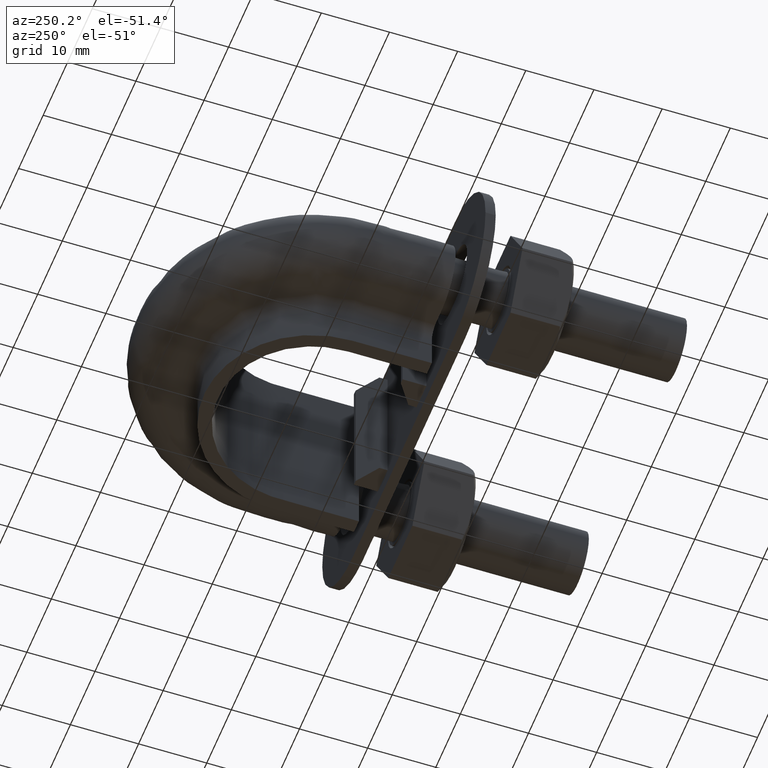
[diagram: clean part render]
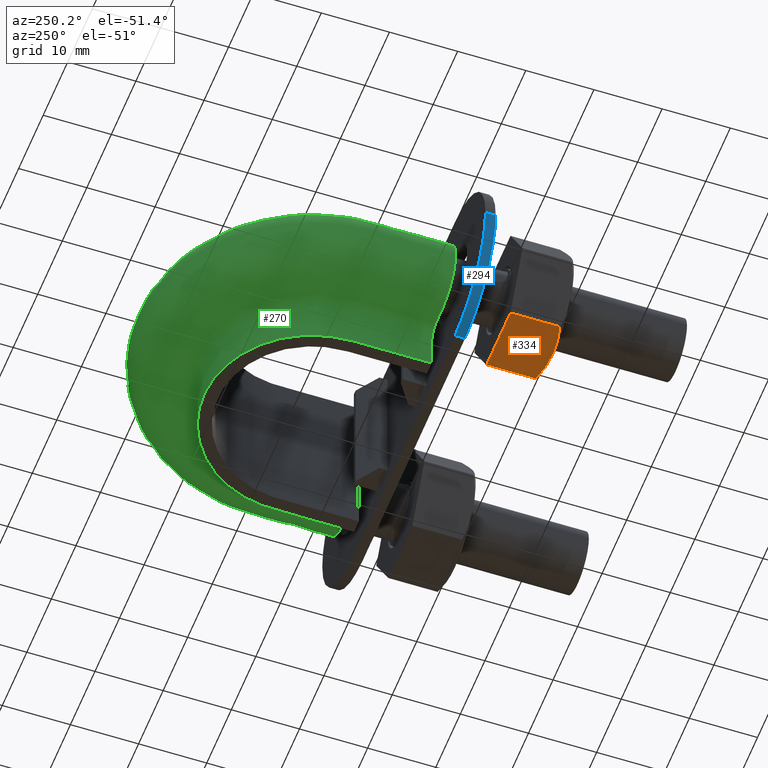
[diagram: same view with three faces highlighted in distinct colors, each labeled with its STEP entity id]
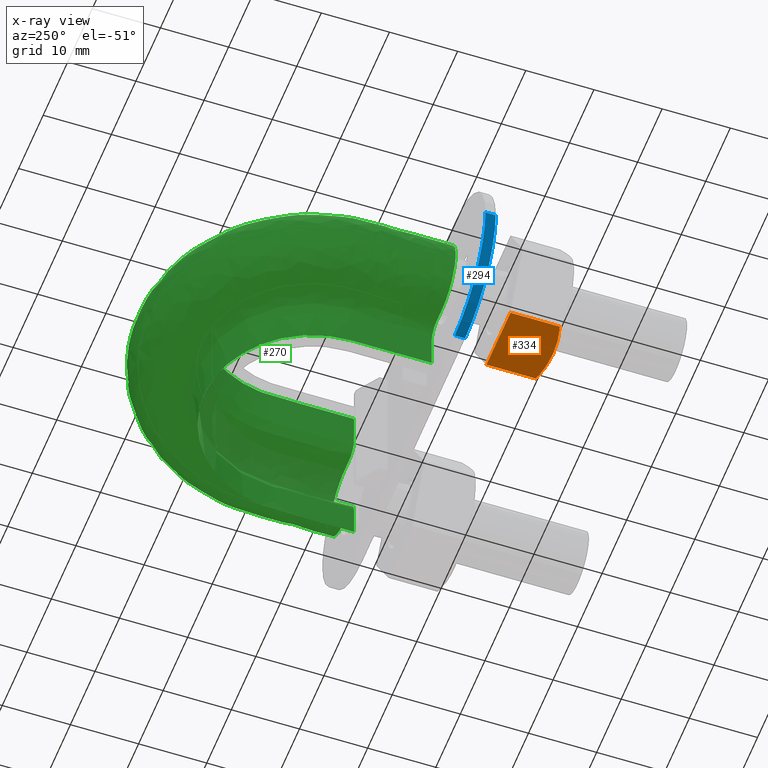
[diagram: x-ray of the same camera — body ghosted, the three highlighted faces saturated]
A machine part, auxiliary view with three faces highlighted in distinct colors.
The next image is the same camera in x-ray (body ghosted, the three faces saturated) — at least one of them is partly hidden behind the body in this view.
Their STEP definitions:

[orange] entity #334 — the highlighted planar face has unit normal (0, -0, 1).
#334 = ADVANCED_FACE( '', ( #524 ), #525, .F. );
#524 = FACE_OUTER_BOUND( '', #1631, .T. );
#525 = PLANE( '', #1632 );
#1631 = EDGE_LOOP( '', ( #2219, #2220, #2221, #2222, #2223 ) );
#1632 = AXIS2_PLACEMENT_3D( '', #2224, #2225, #2226 );
#2219 = ORIENTED_EDGE( '', *, *, #2605, .F. );
#2220 = ORIENTED_EDGE( '', *, *, #2606, .F. );
#2221 = ORIENTED_EDGE( '', *, *, #2604, .F. );
#2222 = ORIENTED_EDGE( '', *, *, #2584, .F. );
#2223 = ORIENTED_EDGE( '', *, *, #2607, .F. );
#2224 = CARTESIAN_POINT( '', ( -15.0925227118915, 26.0000000000000, -8.50000000000114 ) );
#2225 = DIRECTION( '', ( 2.31648034088039E-013, -6.12303176912323E-017, 1.00000000000000 ) );
#2226 = DIRECTION( '', ( 4.89842541528951E-016, 1.00000000000000, 6.12303176911189E-017 ) );
#2584 = EDGE_CURVE( '', #2894, #2896, #2897, .T. );
#2604 = EDGE_CURVE( '', #2896, #2924, #2926, .F. );
#2605 = EDGE_CURVE( '', #2864, #2927, #2928, .T. );
#2606 = EDGE_CURVE( '', #2924, #2864, #2929, .T. );
#2607 = EDGE_CURVE( '', #2927, #2894, #2930, .T. );
#2864 = VERTEX_POINT( '', #3496 );
#2894 = VERTEX_POINT( '', #3543 );
#2896 = VERTEX_POINT( '', #3545 );
#2897 = LINE( '', #3546, #3547 );
#2924 = VERTEX_POINT( '', #3612 );
#2926 = LINE( '', #3614, #3615 );
#2927 = VERTEX_POINT( '', #3616 );
#2928 = B_SPLINE_CURVE_WITH_KNOTS( '', 3, ( #3617, #3618, #3619, #3620, #3621, #3622 ), .UNSPECIFIED., .F., .F., ( 4, 2, 4 ), ( 0.0156840426092147, 0.0181633795370669, 0.0206427164649191 ), .UNSPECIFIED. );
#2929 = B_SPLINE_CURVE_WITH_KNOTS( '', 3, ( #3623, #3624, #3625, #3626, #3627, #3628 ), .UNSPECIFIED., .F., .F., ( 4, 2, 4 ), ( 0.0107224888714690, 0.0132032657403418, 0.0156840426092147 ), .UNSPECIFIED. );
#2930 = LINE( '', #3629, #3630 );
#3496 = CARTESIAN_POINT( '', ( -20.0000000000020, 18.0000000000023, -8.50000000000000 ) );
#3543 = CARTESIAN_POINT( '', ( -15.1225006407005, 26.0000000000000, -8.50000000000113 ) );
#3545 = CARTESIAN_POINT( '', ( -24.8774993593034, 26.0000000000000, -8.49999999999887 ) );
#3546 = CARTESIAN_POINT( '', ( -29.7999999999992, 26.0000000000000, -8.49999999999773 ) );
#3547 = VECTOR( '', #4002, 999.999999999905 );
#3612 = CARTESIAN_POINT( '', ( -24.8774993593034, 18.7505553499486, -8.49999999999887 ) );
#3614 = CARTESIAN_POINT( '', ( -24.8774993593034, 26.0000000000000, -8.49999999999887 ) );
#3615 = VECTOR( '', #4027, 999.999999999905 );
#3616 = CARTESIAN_POINT( '', ( -15.1225006407005, 18.7505553499486, -8.50000000000113 ) );
#3617 = CARTESIAN_POINT( '', ( -20.0000000000018, 18.0000000000032, -8.50000000000000 ) );
#3618 = CARTESIAN_POINT( '', ( -19.1654059591302, 18.0000000000032, -8.50000000000019 ) );
#3619 = CARTESIAN_POINT( '', ( -18.3409017268011, 18.0723104611294, -8.50000000000039 ) );
#3620 = CARTESIAN_POINT( '', ( -16.7171925770435, 18.3339943747763, -8.50000000000076 ) );
#3621 = CARTESIAN_POINT( '', ( -15.9161421877761, 18.5225028103123, -8.50000000000094 ) );
#3622 = CARTESIAN_POINT( '', ( -15.1225006407006, 18.7505553499494, -8.50000000000113 ) );
#3623 = CARTESIAN_POINT( '', ( -24.8774993593033, 18.7505553499494, -8.49999999999887 ) );
#3624 = CARTESIAN_POINT( '', ( -24.0828739329417, 18.5222200930444, -8.49999999999905 ) );
#3625 = CARTESIAN_POINT( '', ( -23.2812026223248, 18.3336547117203, -8.49999999999924 ) );
#3626 = CARTESIAN_POINT( '', ( -21.6573811694475, 18.0721149177849, -8.49999999999961 ) );
#3627 = CARTESIAN_POINT( '', ( -20.8350787536131, 18.0000000000032, -8.49999999999981 ) );
#3628 = CARTESIAN_POINT( '', ( -20.0000000000018, 18.0000000000032, -8.50000000000000 ) );
#3629 = CARTESIAN_POINT( '', ( -15.1225006407005, 26.0000000000000, -8.50000000000113 ) );
#3630 = VECTOR( '', #4028, 999.999999999905 );
#4002 = DIRECTION( '', ( -1.00000000000000, 4.89842541528937E-016, 2.31648034088039E-013 ) );
#4027 = DIRECTION( '', ( 4.89842541528951E-016, 1.00000000000000, 6.12303176911189E-017 ) );
#4028 = DIRECTION( '', ( 4.89842541528951E-016, 1.00000000000000, 6.12303176911189E-017 ) );

[blue] entity #294 — the highlighted cylindrical surface (partial cylindrical patch) has radius 12.5 mm, axis along (-0, -1, 0).
#294 = ADVANCED_FACE( '', ( #439 ), #440, .T. );
#439 = FACE_OUTER_BOUND( '', #1546, .T. );
#440 = CYLINDRICAL_SURFACE( '', #1547, 12.5000000000000 );
#1546 = EDGE_LOOP( '', ( #1925, #1926, #1927, #1928 ) );
#1547 = AXIS2_PLACEMENT_3D( '', #1929, #1930, #1931 );
#1925 = ORIENTED_EDGE( '', *, *, #2513, .F. );
#1926 = ORIENTED_EDGE( '', *, *, #2527, .F. );
#1927 = ORIENTED_EDGE( '', *, *, #2478, .T. );
#1928 = ORIENTED_EDGE( '', *, *, #2493, .T. );
#1929 = CARTESIAN_POINT( '', ( -21.5000000000000, 31.4500000000000, 4.98482957704705E-012 ) );
#1930 = DIRECTION( '', ( -4.90464398173537E-016, -1.00000000000000, 4.52605671983582E-017 ) );
#1931 = DIRECTION( '', ( 2.31648034088059E-013, 4.52605671982446E-017, 1.00000000000000 ) );
#2478 = EDGE_CURVE( '', #2716, #2713, #2717, .T. );
#2493 = EDGE_CURVE( '', #2713, #2743, #2746, .T. );
#2513 = EDGE_CURVE( '', #2778, #2743, #2780, .T. );
#2527 = EDGE_CURVE( '', #2716, #2778, #2803, .T. );
#2713 = VERTEX_POINT( '', #3265 );
#2716 = VERTEX_POINT( '', #3268 );
#2717 = CIRCLE( '', #3269, 12.5000000000000 );
#2743 = VERTEX_POINT( '', #3303 );
#2746 = LINE( '', #3306, #3307 );
#2778 = VERTEX_POINT( '', #3355 );
#2780 = CIRCLE( '', #3358, 12.5000000000000 );
#2803 = LINE( '', #3391, #3392 );
#3265 = CARTESIAN_POINT( '', ( -34.0000000000000, 31.4500000000000, 7.87696055619583E-012 ) );
#3268 = CARTESIAN_POINT( '', ( -21.5000000000029, 31.4500000000000, -12.4999999999950 ) );
#3269 = AXIS2_PLACEMENT_3D( '', #3842, #3843, #3844 );
#3303 = CARTESIAN_POINT( '', ( -34.0000000000000, 32.9500000000000, 7.87689266534504E-012 ) );
#3306 = CARTESIAN_POINT( '', ( -34.0000000000000, 31.4500000000000, 7.87696055619583E-012 ) );
#3307 = VECTOR( '', #3871, 1000.00000000000 );
#3355 = CARTESIAN_POINT( '', ( -21.5000000000029, 32.9500000000000, -12.4999999999950 ) );
#3358 = AXIS2_PLACEMENT_3D( '', #3895, #3896, #3897 );
#3391 = CARTESIAN_POINT( '', ( -21.5000000000029, 31.4500000000000, -12.4999999999950 ) );
#3392 = VECTOR( '', #3917, 1000.00000000000 );
#3842 = CARTESIAN_POINT( '', ( -21.5000000000000, 31.4500000000000, 4.98482957704705E-012 ) );
#3843 = DIRECTION( '', ( 4.90464398173537E-016, 1.00000000000000, -4.52605671983582E-017 ) );
#3844 = DIRECTION( '', ( -2.31370478331903E-013, -4.52605671982447E-017, -1.00000000000000 ) );
#3871 = DIRECTION( '', ( 4.90464398173537E-016, 1.00000000000000, -4.52605671983582E-017 ) );
#3895 = CARTESIAN_POINT( '', ( -21.5000000000000, 32.9500000000000, 4.98476168619625E-012 ) );
#3896 = DIRECTION( '', ( 4.90464398173537E-016, 1.00000000000000, -4.52605671983582E-017 ) );
#3897 = DIRECTION( '', ( -2.31370478331903E-013, -4.52605671982447E-017, -1.00000000000000 ) );
#3917 = DIRECTION( '', ( 4.90464398173537E-016, 1.00000000000000, -4.52605671983582E-017 ) );

[green] entity #270 — the highlighted face is a freeform B-spline surface patch.
#270 = ADVANCED_FACE( '', ( #374 ), #375, .F. );
#374 = FACE_OUTER_BOUND( '', #604, .T. );
#375 = B_SPLINE_SURFACE_WITH_KNOTS( '', 3, 3, ( ( #605, #606, #607, #608, #609, #610, #611, #612, #613, #614, #615, #616, #617, #618, #619, #620, #621, #622 ), ( #623, #624, #625, #626, #627, #628, #629, #630, #631, #632, #633, #634, #635, #636, #637, #638, #639, #640 ), ( #641, #642, #643, #644, #645, #646, #647, #648, #649, #650, #651, #652, #653, #654, #655, #656, #657, #658 ), ( #659, #660, #661, #662, #663, #664, #665, #666, #667, #668, #669, #670, #671, #672, #673, #674, #675, #676 ), ( #677, #678, #679, #680, #681, #682, #683, #684, #685, #686, #687, #688, #689, #690, #691, #692, #693, #694 ), ( #695, #696, #697, #698, #699, #700, #701, #702, #703, #704, #705, #706, #707, #708, #709, #710, #711, #712 ), ( #713, #714, #715, #716, #717, #718, #719, #720, #721, #722, #723, #724, #725, #726, #727, #728, #729, #730 ), ( #731, #732, #733, #734, #735, #736, #737, #738, #739, #740, #741, #742, #743, #744, #745, #746, #747, #748 ), ( #749, #750, #751, #752, #753, #754, #755, #756, #757, #758, #759, #760, #761, #762, #763, #764, #765, #766 ), ( #767, #768, #769, #770, #771, #772, #773, #774, #775, #776, #777, #778, #779, #780, #781, #782, #783, #784 ), ( #785, #786, #787, #788, #789, #790, #791, #792, #793, #794, #795, #796, #797, #798, #799, #800, #801, #802 ), ( #803, #804, #805, #806, #807, #808, #809, #810, #811, #812, #813, #814, #815, #816, #817, #818, #819, #820 ), ( #821, #822, #823, #824, #825, #826, #827, #828, #829, #830, #831, #832, #833, #834, #835, #836, #837, #838 ), ( #839, #840, #841, #842, #843, #844, #845, #846, #847, #848, #849, #850, #851, #852, #853, #854, #855, #856 ), ( #857, #858, #859, #860, #861, #862, #863, #864, #865, #866, #867, #868, #869, #870, #871, #872, #873, #874 ), ( #875, #876, #877, #878, #879, #880, #881, #882, #883, #884, #885, #886, #887, #888, #889, #890, #891, #892 ), ( #893, #894, #895, #896, #897, #898, #899, #900, #901, #902, #903, #904, #905, #906, #907, #908, #909, #910 ), ( #911, #912, #913, #914, #915, #916, #917, #918, #919, #920, #921, #922, #923, #924, #925, #926, #927, #928 ), ( #929, #930, #931, #932, #933, #934, #935, #936, #937, #938, #939, #940, #941, #942, #943, #944, #945, #946 ), ( #947, #948, #949, #950, #951, #952, #953, #954, #955, #956, #957, #958, #959, #960, #961, #962, #963, #964 ), ( #965, #966, #967, #968, #969, #970, #971, #972, #973, #974, #975, #976, #977, #978, #979, #980, #981, #982 ), ( #983, #984, #985, #986, #987, #988, #989, #990, #991, #992, #993, #994, #995, #996, #997, #998, #999, #1000 ), ( #1001, #1002, #1003, #1004, #1005, #1006, #1007, #1008, #1009, #1010, #1011, #1012, #1013, #1014, #1015, #1016, #1017, #1018 ), ( #1019, #1020, #1021, #1022, #1023, #1024, #1025, #1026, #1027, #1028, #1029, #1030, #1031, #1032, #1033, #1034, #1035, #1036 ), ( #1037, #1038, #1039, #1040, #1041, #1042, #1043, #1044, #1045, #1046, #1047, #1048, #1049, #1050, #1051, #1052, #1053, #1054 ), ( #1055, #1056, #1057, #1058, #1059, #1060, #1061, #1062, #1063, #1064, #1065, #1066, #1067, #1068, #1069, #1070, #1071, #1072 ), ( #1073, #1074, #1075, #1076, #1077, #1078, #1079, #1080, #1081, #1082, #1083, #1084, #1085, #1086, #1087, #1088, #1089, #1090 ), ( #1091, #1092, #1093, #1094, #1095, #1096, #1097, #1098, #1099, #1100, #1101, #1102, #1103, #1104, #1105, #1106, #1107, #1108 ), ( #1109, #1110, #1111, #1112, #1113, #1114, #1115, #1116, #1117, #1118, #1119, #1120, #1121, #1122, #1123, #1124, #1125, #1126 ), ( #1127, #1128, #1129, #1130, #1131, #1132, #1133, #1134, #1135, #1136, #1137, #1138, #1139, #1140, #1141, #1142, #1143, #1144 ), ( #1145, #1146, #1147, #1148, #1149, #1150, #1151, #1152, #1153, #1154, #1155, #1156, #1157, #1158, #1159, #1160, #1161, #1162 ) ), .UNSPECIFIED., .F., .F., .F., ( 4, 3, 1, 1, 1, 3, 3, 1, 1, 1, 3, 3, 1, 1, 1, 3, 4 ), ( 4, 3, 1, 1, 1, 1, 1, 1, 1, 1, 3, 4 ), ( 0.000000000000000, 0.0526315789473684, 0.105263157894737, 0.157894736842105, 0.210526315789474, 0.263157894736842, 0.315789473684211, 0.368421052631579, 0.421052631578947, 0.473684210526316, 0.526315789473684, 0.578947368421053, 0.631578947368421, 0.684210526315789, 0.736842105263158, 0.789473684210526, 0.842105263157895 ), ( 0.000000000000000, 1.00000000000000, 1.50000000000000, 1.75000000000000, 2.00000000000000, 3.00000000000000, 4.00000000000000, 5.00000000000000, 5.25000000000000, 5.50000000000000, 6.00000000000000, 7.00000000000000 ), .UNSPECIFIED. );
#604 = EDGE_LOOP( '', ( #1741, #1742, #1743, #1744 ) );
#605 = CARTESIAN_POINT( '', ( -15.8500000000000, 30.0500000000000, 12.5000000000000 ) );
#606 = CARTESIAN_POINT( '', ( -15.8500000000000, 35.4166666666667, 12.5000000000000 ) );
#607 = CARTESIAN_POINT( '', ( -15.8500000000000, 40.7833333333333, 12.5000000000000 ) );
#608 = CARTESIAN_POINT( '', ( -15.8500000000000, 46.1500000000000, 12.5000000000000 ) );
#609 = CARTESIAN_POINT( '', ( -15.8500000000000, 47.7930222221415, 12.5000000000000 ) );
#610 = CARTESIAN_POINT( '', ( -15.4471644107632, 50.2907471890249, 12.5000000000000 ) );
#611 = CARTESIAN_POINT( '', ( -14.1686079776779, 53.3865460861670, 12.5000000000000 ) );
#612 = CARTESIAN_POINT( '', ( -11.5879210877828, 57.6228758250557, 12.5000000000000 ) );
#613 = CARTESIAN_POINT( '', ( -5.22635801800513, 62.2532086284846, 12.5000000000000 ) );
#614 = CARTESIAN_POINT( '', ( 5.22635801800516, 62.2532086284846, 12.5000000000000 ) );
#615 = CARTESIAN_POINT( '', ( 11.5879210877829, 57.6228758250557, 12.5000000000000 ) );
#616 = CARTESIAN_POINT( '', ( 14.1686079776779, 53.3865460861670, 12.5000000000000 ) );
#617 = CARTESIAN_POINT( '', ( 15.4471644107632, 50.2907471890249, 12.5000000000000 ) );
#618 = CARTESIAN_POINT( '', ( 15.8500000000000, 47.7930222221415, 12.5000000000000 ) );
#619 = CARTESIAN_POINT( '', ( 15.8500000000000, 46.1500000000000, 12.5000000000000 ) );
#620 = CARTESIAN_POINT( '', ( 15.8500000000000, 40.7833333333333, 12.5000000000000 ) );
#621 = CARTESIAN_POINT( '', ( 15.8500000000000, 35.4166666666667, 12.5000000000000 ) );
#622 = CARTESIAN_POINT( '', ( 15.8500000000000, 30.0500000000000, 12.5000000000000 ) );
#623 = CARTESIAN_POINT( '', ( -15.8500000000000, 30.0500000000000, 10.8666666666667 ) );
#624 = CARTESIAN_POINT( '', ( -15.8500000000000, 35.4166666666667, 10.8666666666667 ) );
#625 = CARTESIAN_POINT( '', ( -15.8500000000000, 40.7833333333333, 10.8666666666667 ) );
#626 = CARTESIAN_POINT( '', ( -15.8500000000000, 46.1500000000000, 10.8666666666667 ) );
#627 = CARTESIAN_POINT( '', ( -15.8500000000000, 47.7930222221415, 10.8666666666667 ) );
#628 = CARTESIAN_POINT( '', ( -15.4471644107632, 50.2907471890249, 10.8666666666667 ) );
#629 = CARTESIAN_POINT( '', ( -14.1686079776779, 53.3865460861670, 10.8666666666667 ) );
#630 = CARTESIAN_POINT( '', ( -11.5879210877828, 57.6228758250557, 10.8666666666667 ) );
#631 = CARTESIAN_POINT( '', ( -5.22635801800513, 62.2532086284846, 10.8666666666667 ) );
#632 = CARTESIAN_POINT( '', ( 5.22635801800516, 62.2532086284846, 10.8666666666666 ) );
#633 = CARTESIAN_POINT( '', ( 11.5879210877829, 57.6228758250557, 10.8666666666667 ) );
#634 = CARTESIAN_POINT( '', ( 14.1686079776779, 53.3865460861670, 10.8666666666666 ) );
#635 = CARTESIAN_POINT( '', ( 15.4471644107632, 50.2907471890249, 10.8666666666667 ) );
#636 = CARTESIAN_POINT( '', ( 15.8500000000000, 47.7930222221415, 10.8666666666667 ) );
#637 = CARTESIAN_POINT( '', ( 15.8500000000000, 46.1500000000000, 10.8666666666667 ) );
#638 = CARTESIAN_POINT( '', ( 15.8500000000000, 40.7833333333333, 10.8666666666667 ) );
#639 = CARTESIAN_POINT( '', ( 15.8500000000000, 35.4166666666667, 10.8666666666667 ) );
#640 = CARTESIAN_POINT( '', ( 15.8500000000000, 30.0500000000000, 10.8666666666667 ) );
#641 = CARTESIAN_POINT( '', ( -15.8500000000000, 30.0500000000000, 9.23333333333332 ) );
#642 = CARTESIAN_POINT( '', ( -15.8500000000000, 35.4166666666667, 9.23333333333332 ) );
#643 = CARTESIAN_POINT( '', ( -15.8500000000000, 40.7833333333333, 9.23333333333332 ) );
#644 = CARTESIAN_POINT( '', ( -15.8500000000000, 46.1500000000000, 9.23333333333332 ) );
#645 = CARTESIAN_POINT( '', ( -15.8500000000000, 47.7930222221415, 9.23333333333332 ) );
#646 = CARTESIAN_POINT( '', ( -15.4471644107632, 50.2907471890249, 9.23333333333331 ) );
#647 = CARTESIAN_POINT( '', ( -14.1686079776779, 53.3865460861670, 9.23333333333332 ) );
#648 = CARTESIAN_POINT( '', ( -11.5879210877828, 57.6228758250557, 9.23333333333332 ) );
#649 = CARTESIAN_POINT( '', ( -5.22635801800513, 62.2532086284846, 9.23333333333333 ) );
#650 = CARTESIAN_POINT( '', ( 5.22635801800516, 62.2532086284846, 9.23333333333331 ) );
#651 = CARTESIAN_POINT( '', ( 11.5879210877829, 57.6228758250557, 9.23333333333333 ) );
#652 = CARTESIAN_POINT( '', ( 14.1686079776779, 53.3865460861670, 9.23333333333331 ) );
#653 = CARTESIAN_POINT( '', ( 15.4471644107632, 50.2907471890249, 9.23333333333332 ) );
#654 = CARTESIAN_POINT( '', ( 15.8500000000000, 47.7930222221415, 9.23333333333332 ) );
#655 = CARTESIAN_POINT( '', ( 15.8500000000000, 46.1500000000000, 9.23333333333332 ) );
#656 = CARTESIAN_POINT( '', ( 15.8500000000000, 40.7833333333333, 9.23333333333332 ) );
#657 = CARTESIAN_POINT( '', ( 15.8500000000000, 35.4166666666667, 9.23333333333332 ) );
#658 = CARTESIAN_POINT( '', ( 15.8500000000000, 30.0500000000000, 9.23333333333332 ) );
#659 = CARTESIAN_POINT( '', ( -15.8500000000000, 30.0500000000000, 7.59999999999998 ) );
#660 = CARTESIAN_POINT( '', ( -15.8500000000000, 35.4166666666667, 7.59999999999998 ) );
#661 = CARTESIAN_POINT( '', ( -15.8500000000000, 40.7833333333333, 7.59999999999998 ) );
#662 = CARTESIAN_POINT( '', ( -15.8500000000000, 46.1500000000000, 7.59999999999998 ) );
#663 = CARTESIAN_POINT( '', ( -15.8500000000000, 47.7930222221415, 7.59999999999998 ) );
#664 = CARTESIAN_POINT( '', ( -15.4471644107632, 50.2907471890249, 7.59999999999998 ) );
#665 = CARTESIAN_POINT( '', ( -14.1686079776779, 53.3865460861670, 7.59999999999998 ) );
#666 = CARTESIAN_POINT( '', ( -11.5879210877828, 57.6228758250557, 7.59999999999998 ) );
#667 = CARTESIAN_POINT( '', ( -5.22635801800513, 62.2532086284846, 7.59999999999999 ) );
#668 = CARTESIAN_POINT( '', ( 5.22635801800516, 62.2532086284846, 7.59999999999997 ) );
#669 = CARTESIAN_POINT( '', ( 11.5879210877829, 57.6228758250557, 7.59999999999999 ) );
#670 = CARTESIAN_POINT( '', ( 14.1686079776779, 53.3865460861670, 7.59999999999998 ) );
#671 = CARTESIAN_POINT( '', ( 15.4471644107632, 50.2907471890249, 7.59999999999998 ) );
#672 = CARTESIAN_POINT( '', ( 15.8500000000000, 47.7930222221415, 7.59999999999998 ) );
#673 = CARTESIAN_POINT( '', ( 15.8500000000000, 46.1500000000000, 7.59999999999998 ) );
#674 = CARTESIAN_POINT( '', ( 15.8500000000000, 40.7833333333333, 7.59999999999998 ) );
#675 = CARTESIAN_POINT( '', ( 15.8500000000000, 35.4166666666667, 7.59999999999998 ) );
#676 = CARTESIAN_POINT( '', ( 15.8500000000000, 30.0500000000000, 7.59999999999998 ) );
#677 = CARTESIAN_POINT( '', ( -15.8500000000000, 30.0500000000000, 7.33823584172332 ) );
#678 = CARTESIAN_POINT( '', ( -15.8500000000000, 35.4166666666667, 7.33823584172332 ) );
#679 = CARTESIAN_POINT( '', ( -15.8500000000000, 40.7833333333333, 7.33823584172332 ) );
#680 = CARTESIAN_POINT( '', ( -15.8500000000000, 46.1500000000000, 7.33823584172332 ) );
#681 = CARTESIAN_POINT( '', ( -15.8500000000000, 47.7930222221415, 7.33823584172332 ) );
#682 = CARTESIAN_POINT( '', ( -15.4471644107632, 50.2907471890249, 7.33823584172332 ) );
#683 = CARTESIAN_POINT( '', ( -14.1686079776779, 53.3865460861670, 7.33823584172332 ) );
#684 = CARTESIAN_POINT( '', ( -11.5879210877828, 57.6228758250557, 7.33823584172332 ) );
#685 = CARTESIAN_POINT( '', ( -5.22635801800512, 62.2532086284846, 7.33823584172333 ) );
#686 = CARTESIAN_POINT( '', ( 5.22635801800516, 62.2532086284846, 7.33823584172331 ) );
#687 = CARTESIAN_POINT( '', ( 11.5879210877829, 57.6228758250557, 7.33823584172333 ) );
#688 = CARTESIAN_POINT( '', ( 14.1686079776779, 53.3865460861670, 7.33823584172331 ) );
#689 = CARTESIAN_POINT( '', ( 15.4471644107632, 50.2907471890249, 7.33823584172332 ) );
#690 = CARTESIAN_POINT( '', ( 15.8500000000000, 47.7930222221415, 7.33823584172332 ) );
#691 = CARTESIAN_POINT( '', ( 15.8500000000000, 46.1500000000000, 7.33823584172332 ) );
#692 = CARTESIAN_POINT( '', ( 15.8500000000000, 40.7833333333333, 7.33823584172332 ) );
#693 = CARTESIAN_POINT( '', ( 15.8500000000000, 35.4166666666667, 7.33823584172332 ) );
#694 = CARTESIAN_POINT( '', ( 15.8500000000000, 30.0500000000000, 7.33823584172332 ) );
#695 = CARTESIAN_POINT( '', ( -15.9541362568359, 30.0500000000000, 6.81470752516999 ) );
#696 = CARTESIAN_POINT( '', ( -15.9541362568359, 35.4166666666667, 6.81470752516999 ) );
#697 = CARTESIAN_POINT( '', ( -15.9541362568359, 40.7833333333333, 6.81470752516999 ) );
#698 = CARTESIAN_POINT( '', ( -15.9541362568359, 46.1500000000000, 6.81470752516999 ) );
#699 = CARTESIAN_POINT( '', ( -15.9541362568359, 47.8043008624542, 6.81470752516999 ) );
#700 = CARTESIAN_POINT( '', ( -15.5486136031007, 50.3181109096887, 6.81470752516999 ) );
#701 = CARTESIAN_POINT( '', ( -14.2619323017759, 53.4337199575683, 6.81470752516999 ) );
#702 = CARTESIAN_POINT( '', ( -11.6637657839457, 57.6987055899314, 6.81470752516999 ) );
#703 = CARTESIAN_POINT( '', ( -5.26084038438269, 62.3588794372083, 6.81470752517000 ) );
#704 = CARTESIAN_POINT( '', ( 5.26084038438273, 62.3588794372083, 6.81470752516999 ) );
#705 = CARTESIAN_POINT( '', ( 11.6637657839457, 57.6987055899314, 6.81470752517000 ) );
#706 = CARTESIAN_POINT( '', ( 14.2619323017759, 53.4337199575683, 6.81470752516999 ) );
#707 = CARTESIAN_POINT( '', ( 15.5486136031007, 50.3181109096888, 6.81470752516999 ) );
#708 = CARTESIAN_POINT( '', ( 15.9541362568359, 47.8043008624542, 6.81470752516999 ) );
#709 = CARTESIAN_POINT( '', ( 15.9541362568359, 46.1500000000000, 6.81470752516999 ) );
#710 = CARTESIAN_POINT( '', ( 15.9541362568359, 40.7833333333333, 6.81470752516999 ) );
#711 = CARTESIAN_POINT( '', ( 15.9541362568359, 35.4166666666667, 6.81470752516999 ) );
#712 = CARTESIAN_POINT( '', ( 15.9541362568359, 30.0500000000000, 6.81470752516999 ) );
#713 = CARTESIAN_POINT( '', ( -16.3989687109389, 30.0500000000000, 6.14896871093886 ) );
#714 = CARTESIAN_POINT( '', ( -16.3989687109389, 35.4166666666667, 6.14896871093886 ) );
#715 = CARTESIAN_POINT( '', ( -16.3989687109389, 40.7833333333333, 6.14896871093886 ) );
#716 = CARTESIAN_POINT( '', ( -16.3989687109389, 46.1500000000000, 6.14896871093886 ) );
#717 = CARTESIAN_POINT( '', ( -16.3989687109389, 47.8524791377414, 6.14896871093886 ) );
#718 = CARTESIAN_POINT( '', ( -15.9819678887780, 50.4349988350486, 6.14896871093886 ) );
#719 = CARTESIAN_POINT( '', ( -14.6605800866819, 53.6352296874415, 6.14896871093886 ) );
#720 = CARTESIAN_POINT( '', ( -11.9877469154933, 58.0226229404160, 6.14896871093886 ) );
#721 = CARTESIAN_POINT( '', ( -5.40813659153541, 62.8102669423852, 6.14896871093887 ) );
#722 = CARTESIAN_POINT( '', ( 5.40813659153544, 62.8102669423853, 6.14896871093885 ) );
#723 = CARTESIAN_POINT( '', ( 11.9877469154933, 58.0226229404160, 6.14896871093887 ) );
#724 = CARTESIAN_POINT( '', ( 14.6605800866819, 53.6352296874415, 6.14896871093886 ) );
#725 = CARTESIAN_POINT( '', ( 15.9819678887781, 50.4349988350486, 6.14896871093886 ) );
#726 = CARTESIAN_POINT( '', ( 16.3989687109389, 47.8524791377414, 6.14896871093886 ) );
#727 = CARTESIAN_POINT( '', ( 16.3989687109389, 46.1500000000000, 6.14896871093886 ) );
#728 = CARTESIAN_POINT( '', ( 16.3989687109389, 40.7833333333333, 6.14896871093886 ) );
#729 = CARTESIAN_POINT( '', ( 16.3989687109389, 35.4166666666667, 6.14896871093886 ) );
#730 = CARTESIAN_POINT( '', ( 16.3989687109389, 30.0500000000000, 6.14896871093886 ) );
#731 = CARTESIAN_POINT( '', ( -17.0647075251700, 30.0500000000000, 5.70413625683589 ) );
#732 = CARTESIAN_POINT( '', ( -17.0647075251700, 35.4166666666667, 5.70413625683589 ) );
#733 = CARTESIAN_POINT( '', ( -17.0647075251700, 40.7833333333333, 5.70413625683589 ) );
#734 = CARTESIAN_POINT( '', ( -17.0647075251700, 46.1500000000000, 5.70413625683589 ) );
#735 = CARTESIAN_POINT( '', ( -17.0647075251700, 47.9245830221716, 5.70413625683589 ) );
#736 = CARTESIAN_POINT( '', ( -16.6305284099986, 50.6099339777281, 5.70413625683589 ) );
#737 = CARTESIAN_POINT( '', ( -15.2571986588459, 53.9368103104028, 5.70413625683589 ) );
#738 = CARTESIAN_POINT( '', ( -12.4726189439622, 58.5073995137786, 5.70413625683589 ) );
#739 = CARTESIAN_POINT( '', ( -5.62858094397893, 63.4858160838282, 5.70413625683590 ) );
#740 = CARTESIAN_POINT( '', ( 5.62858094397896, 63.4858160838282, 5.70413625683589 ) );
#741 = CARTESIAN_POINT( '', ( 12.4726189439623, 58.5073995137786, 5.70413625683590 ) );
#742 = CARTESIAN_POINT( '', ( 15.2571986588460, 53.9368103104028, 5.70413625683589 ) );
#743 = CARTESIAN_POINT( '', ( 16.6305284099986, 50.6099339777282, 5.70413625683589 ) );
#744 = CARTESIAN_POINT( '', ( 17.0647075251700, 47.9245830221715, 5.70413625683589 ) );
#745 = CARTESIAN_POINT( '', ( 17.0647075251700, 46.1500000000000, 5.70413625683589 ) );
#746 = CARTESIAN_POINT( '', ( 17.0647075251700, 40.7833333333333, 5.70413625683589 ) );
#747 = CARTESIAN_POINT( '', ( 17.0647075251700, 35.4166666666667, 5.70413625683589 ) );
#748 = CARTESIAN_POINT( '', ( 17.0647075251700, 30.0500000000000, 5.70413625683589 ) );
#749 = CARTESIAN_POINT( '', ( -17.5882358417233, 30.0500000000000, 5.59999999999998 ) );
#750 = CARTESIAN_POINT( '', ( -17.5882358417233, 35.4166666666667, 5.59999999999998 ) );
#751 = CARTESIAN_POINT( '', ( -17.5882358417233, 40.7833333333333, 5.59999999999998 ) );
#752 = CARTESIAN_POINT( '', ( -17.5882358417233, 46.1500000000000, 5.59999999999998 ) );
#753 = CARTESIAN_POINT( '', ( -17.5882358417233, 47.9812845760328, 5.59999999999998 ) );
#754 = CARTESIAN_POINT( '', ( -17.1405479410810, 50.7475006912730, 5.59999999999998 ) );
#755 = CARTESIAN_POINT( '', ( -15.7263717189600, 54.1739693770954, 5.59999999999998 ) );
#756 = CARTESIAN_POINT( '', ( -12.8539159802501, 58.8886214854165, 5.59999999999998 ) );
#757 = CARTESIAN_POINT( '', ( -5.80193550625081, 64.0170591136899, 5.59999999999999 ) );
#758 = CARTESIAN_POINT( '', ( 5.80193550625084, 64.0170591136900, 5.59999999999998 ) );
#759 = CARTESIAN_POINT( '', ( 12.8539159802502, 58.8886214854165, 5.59999999999999 ) );
#760 = CARTESIAN_POINT( '', ( 15.7263717189600, 54.1739693770954, 5.59999999999998 ) );
#761 = CARTESIAN_POINT( '', ( 17.1405479410811, 50.7475006912730, 5.59999999999999 ) );
#762 = CARTESIAN_POINT( '', ( 17.5882358417234, 47.9812845760328, 5.59999999999998 ) );
#763 = CARTESIAN_POINT( '', ( 17.5882358417234, 46.1500000000000, 5.59999999999998 ) );
#764 = CARTESIAN_POINT( '', ( 17.5882358417234, 40.7833333333333, 5.59999999999998 ) );
#765 = CARTESIAN_POINT( '', ( 17.5882358417234, 35.4166666666667, 5.59999999999998 ) );
#766 = CARTESIAN_POINT( '', ( 17.5882358417234, 30.0500000000000, 5.59999999999998 ) );
#767 = CARTESIAN_POINT( '', ( -17.8500000000000, 30.0500000000000, 5.59999999999998 ) );
#768 = CARTESIAN_POINT( '', ( -17.8500000000000, 35.4166666666667, 5.59999999999998 ) );
#769 = CARTESIAN_POINT( '', ( -17.8500000000000, 40.7833333333333, 5.59999999999998 ) );
#770 = CARTESIAN_POINT( '', ( -17.8500000000000, 46.1500000000000, 5.59999999999998 ) );
#771 = CARTESIAN_POINT( '', ( -17.8500000000000, 48.0096353529635, 5.59999999999998 ) );
#772 = CARTESIAN_POINT( '', ( -17.3955577066223, 50.8162840480455, 5.59999999999998 ) );
#773 = CARTESIAN_POINT( '', ( -15.9609582490170, 54.2925489104417, 5.59999999999998 ) );
#774 = CARTESIAN_POINT( '', ( -13.0445644983941, 59.0792324712354, 5.59999999999998 ) );
#775 = CARTESIAN_POINT( '', ( -5.88861278738676, 64.2826806286208, 5.59999999999999 ) );
#776 = CARTESIAN_POINT( '', ( 5.88861278738680, 64.2826806286208, 5.59999999999998 ) );
#777 = CARTESIAN_POINT( '', ( 13.0445644983941, 59.0792324712354, 5.59999999999999 ) );
#778 = CARTESIAN_POINT( '', ( 15.9609582490170, 54.2925489104416, 5.59999999999998 ) );
#779 = CARTESIAN_POINT( '', ( 17.3955577066223, 50.8162840480455, 5.59999999999999 ) );
#780 = CARTESIAN_POINT( '', ( 17.8500000000000, 48.0096353529635, 5.59999999999998 ) );
#781 = CARTESIAN_POINT( '', ( 17.8500000000000, 46.1500000000000, 5.59999999999998 ) );
#782 = CARTESIAN_POINT( '', ( 17.8500000000000, 40.7833333333333, 5.59999999999998 ) );
#783 = CARTESIAN_POINT( '', ( 17.8500000000000, 35.4166666666667, 5.59999999999998 ) );
#784 = CARTESIAN_POINT( '', ( 17.8500000000000, 30.0500000000000, 5.59999999999998 ) );
#785 = CARTESIAN_POINT( '', ( -18.5666666666667, 30.0500000000000, 5.60000000000000 ) );
#786 = CARTESIAN_POINT( '', ( -18.5666666666667, 35.4166666666667, 5.60000000000000 ) );
#787 = CARTESIAN_POINT( '', ( -18.5666666666667, 40.7833333333333, 5.60000000000000 ) );
#788 = CARTESIAN_POINT( '', ( -18.5666666666667, 46.1500000000000, 5.60000000000000 ) );
#789 = CARTESIAN_POINT( '', ( -18.5666666666667, 48.0872550581747, 5.60000000000000 ) );
#790 = CARTESIAN_POINT( '', ( -18.0937319709718, 51.0046014225279, 5.60000000000000 ) );
#791 = CARTESIAN_POINT( '', ( -16.6032170962468, 54.6171999224734, 5.60000000000000 ) );
#792 = CARTESIAN_POINT( '', ( -13.5665283871965, 59.6010936027831, 5.60000000000000 ) );
#793 = CARTESIAN_POINT( '', ( -6.12592074641518, 65.0099080953363, 5.60000000000001 ) );
#794 = CARTESIAN_POINT( '', ( 6.12592074641521, 65.0099080953363, 5.59999999999999 ) );
#795 = CARTESIAN_POINT( '', ( 13.5665283871965, 59.6010936027832, 5.60000000000001 ) );
#796 = CARTESIAN_POINT( '', ( 16.6032170962469, 54.6171999224734, 5.60000000000000 ) );
#797 = CARTESIAN_POINT( '', ( 18.0937319709718, 51.0046014225279, 5.60000000000000 ) );
#798 = CARTESIAN_POINT( '', ( 18.5666666666667, 48.0872550581747, 5.60000000000000 ) );
#799 = CARTESIAN_POINT( '', ( 18.5666666666667, 46.1500000000000, 5.60000000000000 ) );
#800 = CARTESIAN_POINT( '', ( 18.5666666666667, 40.7833333333333, 5.60000000000000 ) );
#801 = CARTESIAN_POINT( '', ( 18.5666666666667, 35.4166666666667, 5.60000000000000 ) );
#802 = CARTESIAN_POINT( '', ( 18.5666666666667, 30.0500000000000, 5.60000000000000 ) );
#803 = CARTESIAN_POINT( '', ( -19.2833333333333, 30.0500000000000, 5.60000000000000 ) );
#804 = CARTESIAN_POINT( '', ( -19.2833333333333, 35.4166666666667, 5.60000000000000 ) );
#805 = CARTESIAN_POINT( '', ( -19.2833333333333, 40.7833333333333, 5.60000000000000 ) );
#806 = CARTESIAN_POINT( '', ( -19.2833333333333, 46.1500000000000, 5.60000000000000 ) );
#807 = CARTESIAN_POINT( '', ( -19.2833333333333, 48.1648747633859, 5.60000000000000 ) );
#808 = CARTESIAN_POINT( '', ( -18.7919062353213, 51.1929187970102, 5.60000000000000 ) );
#809 = CARTESIAN_POINT( '', ( -17.2454759434767, 54.9418509345052, 5.60000000000000 ) );
#810 = CARTESIAN_POINT( '', ( -14.0884922759988, 60.1229547343309, 5.60000000000000 ) );
#811 = CARTESIAN_POINT( '', ( -6.36322870544359, 65.7371355620517, 5.60000000000001 ) );
#812 = CARTESIAN_POINT( '', ( 6.36322870544363, 65.7371355620517, 5.59999999999999 ) );
#813 = CARTESIAN_POINT( '', ( 14.0884922759989, 60.1229547343308, 5.60000000000001 ) );
#814 = CARTESIAN_POINT( '', ( 17.2454759434767, 54.9418509345052, 5.60000000000000 ) );
#815 = CARTESIAN_POINT( '', ( 18.7919062353213, 51.1929187970103, 5.60000000000000 ) );
#816 = CARTESIAN_POINT( '', ( 19.2833333333334, 48.1648747633859, 5.60000000000000 ) );
#817 = CARTESIAN_POINT( '', ( 19.2833333333334, 46.1500000000000, 5.60000000000000 ) );
#818 = CARTESIAN_POINT( '', ( 19.2833333333334, 40.7833333333333, 5.60000000000000 ) );
#819 = CARTESIAN_POINT( '', ( 19.2833333333334, 35.4166666666667, 5.60000000000000 ) );
#820 = CARTESIAN_POINT( '', ( 19.2833333333334, 30.0500000000000, 5.60000000000000 ) );
#821 = CARTESIAN_POINT( '', ( -20.0000000000000, 30.0500000000000, 5.60000000000000 ) );
#822 = CARTESIAN_POINT( '', ( -20.0000000000000, 35.4166666666667, 5.60000000000000 ) );
#823 = CARTESIAN_POINT( '', ( -20.0000000000000, 40.7833333333333, 5.60000000000000 ) );
#824 = CARTESIAN_POINT( '', ( -20.0000000000000, 46.1500000000000, 5.60000000000000 ) );
#825 = CARTESIAN_POINT( '', ( -20.0000000000000, 48.2424944685971, 5.60000000000000 ) );
#826 = CARTESIAN_POINT( '', ( -19.4900804996708, 51.3812361714926, 5.60000000000000 ) );
#827 = CARTESIAN_POINT( '', ( -17.8877347907065, 55.2665019465370, 5.60000000000000 ) );
#828 = CARTESIAN_POINT( '', ( -14.6104561648012, 60.6448158658786, 5.60000000000000 ) );
#829 = CARTESIAN_POINT( '', ( -6.60053666447201, 66.4643630287672, 5.60000000000001 ) );
#830 = CARTESIAN_POINT( '', ( 6.60053666447204, 66.4643630287672, 5.59999999999999 ) );
#831 = CARTESIAN_POINT( '', ( 14.6104561648012, 60.6448158658785, 5.60000000000001 ) );
#832 = CARTESIAN_POINT( '', ( 17.8877347907065, 55.2665019465369, 5.60000000000000 ) );
#833 = CARTESIAN_POINT( '', ( 19.4900804996708, 51.3812361714926, 5.60000000000000 ) );
#834 = CARTESIAN_POINT( '', ( 20.0000000000000, 48.2424944685970, 5.60000000000000 ) );
#835 = CARTESIAN_POINT( '', ( 20.0000000000000, 46.1500000000000, 5.60000000000000 ) );
#836 = CARTESIAN_POINT( '', ( 20.0000000000000, 40.7833333333333, 5.60000000000000 ) );
#837 = CARTESIAN_POINT( '', ( 20.0000000000000, 35.4166666666667, 5.60000000000000 ) );
#838 = CARTESIAN_POINT( '', ( 20.0000000000000, 30.0500000000000, 5.60000000000000 ) );
#839 = CARTESIAN_POINT( '', ( -21.4627416997969, 30.0500000000000, 5.60000000000001 ) );
#840 = CARTESIAN_POINT( '', ( -21.4627416997969, 35.4166666666667, 5.60000000000001 ) );
#841 = CARTESIAN_POINT( '', ( -21.4627416997969, 40.7833333333333, 5.60000000000001 ) );
#842 = CARTESIAN_POINT( '', ( -21.4627416997969, 46.1500000000000, 5.60000000000001 ) );
#843 = CARTESIAN_POINT( '', ( -21.4627416997969, 48.4009189981855, 5.60000000000001 ) );
#844 = CARTESIAN_POINT( '', ( -20.9150785603997, 51.7655985107275, 5.60000000000000 ) );
#845 = CARTESIAN_POINT( '', ( -19.1986075319715, 55.9291260021372, 5.60000000000001 ) );
#846 = CARTESIAN_POINT( '', ( -15.6758026940190, 61.7099526639503, 5.60000000000000 ) );
#847 = CARTESIAN_POINT( '', ( -7.08489049800397, 67.9486596903520, 5.60000000000001 ) );
#848 = CARTESIAN_POINT( '', ( 7.08489049800400, 67.9486596903519, 5.60000000000000 ) );
#849 = CARTESIAN_POINT( '', ( 15.6758026940190, 61.7099526639503, 5.60000000000001 ) );
#850 = CARTESIAN_POINT( '', ( 19.1986075319716, 55.9291260021371, 5.60000000000000 ) );
#851 = CARTESIAN_POINT( '', ( 20.9150785603997, 51.7655985107275, 5.60000000000001 ) );
#852 = CARTESIAN_POINT( '', ( 21.4627416997969, 48.4009189981855, 5.60000000000001 ) );
#853 = CARTESIAN_POINT( '', ( 21.4627416997969, 46.1500000000000, 5.60000000000001 ) );
#854 = CARTESIAN_POINT( '', ( 21.4627416997969, 40.7833333333333, 5.60000000000001 ) );
#855 = CARTESIAN_POINT( '', ( 21.4627416997969, 35.4166666666667, 5.60000000000001 ) );
#856 = CARTESIAN_POINT( '', ( 21.4627416997969, 30.0500000000000, 5.60000000000001 ) );
#857 = CARTESIAN_POINT( '', ( -24.3882250993908, 30.0500000000000, 4.38822509939086 ) );
#858 = CARTESIAN_POINT( '', ( -24.3882250993908, 35.4166666666667, 4.38822509939086 ) );
#859 = CARTESIAN_POINT( '', ( -24.3882250993908, 40.7833333333333, 4.38822509939086 ) );
#860 = CARTESIAN_POINT( '', ( -24.3882250993908, 46.1500000000000, 4.38822509939086 ) );
#861 = CARTESIAN_POINT( '', ( -24.3882250993908, 48.7177680573623, 4.38822509939086 ) );
#862 = CARTESIAN_POINT( '', ( -23.7650746818577, 52.5343231891973, 4.38822509939086 ) );
#863 = CARTESIAN_POINT( '', ( -21.8203530145016, 57.2543741133376, 4.38822509939086 ) );
#864 = CARTESIAN_POINT( '', ( -17.8064957524545, 63.8402262600938, 4.38822509939086 ) );
#865 = CARTESIAN_POINT( '', ( -8.05359816506789, 70.9172530135215, 4.38822509939087 ) );
#866 = CARTESIAN_POINT( '', ( 8.05359816506792, 70.9172530135215, 4.38822509939086 ) );
#867 = CARTESIAN_POINT( '', ( 17.8064957524546, 63.8402262600937, 4.38822509939087 ) );
#868 = CARTESIAN_POINT( '', ( 21.8203530145016, 57.2543741133375, 4.38822509939086 ) );
#869 = CARTESIAN_POINT( '', ( 23.7650746818577, 52.5343231891973, 4.38822509939086 ) );
#870 = CARTESIAN_POINT( '', ( 24.3882250993909, 48.7177680573623, 4.38822509939086 ) );
#871 = CARTESIAN_POINT( '', ( 24.3882250993909, 46.1500000000000, 4.38822509939086 ) );
#872 = CARTESIAN_POINT( '', ( 24.3882250993909, 40.7833333333333, 4.38822509939086 ) );
#873 = CARTESIAN_POINT( '', ( 24.3882250993909, 35.4166666666667, 4.38822509939086 ) );
#874 = CARTESIAN_POINT( '', ( 24.3882250993909, 30.0500000000000, 4.38822509939086 ) );
#875 = CARTESIAN_POINT( '', ( -26.2058874503046, 30.0500000000000, 2.59688645100852E-015 ) );
#876 = CARTESIAN_POINT( '', ( -26.2058874503046, 35.4166666666667, 2.59688645100852E-015 ) );
#877 = CARTESIAN_POINT( '', ( -26.2058874503046, 40.7833333333333, 2.59688645100852E-015 ) );
#878 = CARTESIAN_POINT( '', ( -26.2058874503046, 46.1500000000000, 2.59688645100852E-015 ) );
#879 = CARTESIAN_POINT( '', ( -26.2058874503046, 48.9146328236666, 2.59688645100852E-015 ) );
#880 = CARTESIAN_POINT( '', ( -25.5358352511855, 53.0119474705269, 2.59688645100852E-015 ) );
#881 = CARTESIAN_POINT( '', ( -23.4492968184332, 58.0777777250903, 2.59688645100852E-015 ) );
#882 = CARTESIAN_POINT( '', ( -19.1303386955418, 65.1638085827257, 2.59688645100852E-015 ) );
#883 = CARTESIAN_POINT( '', ( -8.65547594557692, 72.7617004369621, 2.59688645100852E-015 ) );
#884 = CARTESIAN_POINT( '', ( 8.65547594557694, 72.7617004369621, 2.59688645100852E-015 ) );
#885 = CARTESIAN_POINT( '', ( 19.1303386955419, 65.1638085827256, 2.59688645100852E-015 ) );
#886 = CARTESIAN_POINT( '', ( 23.4492968184332, 58.0777777250903, 2.59688645100852E-015 ) );
#887 = CARTESIAN_POINT( '', ( 25.5358352511856, 53.0119474705269, 2.59688645100852E-015 ) );
#888 = CARTESIAN_POINT( '', ( 26.2058874503046, 48.9146328236666, 2.59688645100852E-015 ) );
#889 = CARTESIAN_POINT( '', ( 26.2058874503046, 46.1500000000000, 2.59688645100852E-015 ) );
#890 = CARTESIAN_POINT( '', ( 26.2058874503046, 40.7833333333333, 2.59688645100852E-015 ) );
#891 = CARTESIAN_POINT( '', ( 26.2058874503046, 35.4166666666667, 2.59688645100852E-015 ) );
#892 = CARTESIAN_POINT( '', ( 26.2058874503046, 30.0500000000000, 2.59688645100852E-015 ) );
#893 = CARTESIAN_POINT( '', ( -24.3882250993908, 30.0500000000000, -4.38822509939086 ) );
#894 = CARTESIAN_POINT( '', ( -24.3882250993908, 35.4166666666667, -4.38822509939086 ) );
#895 = CARTESIAN_POINT( '', ( -24.3882250993908, 40.7833333333333, -4.38822509939086 ) );
#896 = CARTESIAN_POINT( '', ( -24.3882250993908, 46.1500000000000, -4.38822509939086 ) );
#897 = CARTESIAN_POINT( '', ( -24.3882250993908, 48.7177680573623, -4.38822509939086 ) );
#898 = CARTESIAN_POINT( '', ( -23.7650746818577, 52.5343231891973, -4.38822509939086 ) );
#899 = CARTESIAN_POINT( '', ( -21.8203530145016, 57.2543741133376, -4.38822509939086 ) );
#900 = CARTESIAN_POINT( '', ( -17.8064957524545, 63.8402262600937, -4.38822509939086 ) );
#901 = CARTESIAN_POINT( '', ( -8.05359816506789, 70.9172530135215, -4.38822509939087 ) );
#902 = CARTESIAN_POINT( '', ( 8.05359816506792, 70.9172530135215, -4.38822509939086 ) );
#903 = CARTESIAN_POINT( '', ( 17.8064957524546, 63.8402262600937, -4.38822509939087 ) );
#904 = CARTESIAN_POINT( '', ( 21.8203530145016, 57.2543741133375, -4.38822509939086 ) );
#905 = CARTESIAN_POINT( '', ( 23.7650746818577, 52.5343231891973, -4.38822509939086 ) );
#906 = CARTESIAN_POINT( '', ( 24.3882250993909, 48.7177680573623, -4.38822509939086 ) );
#907 = CARTESIAN_POINT( '', ( 24.3882250993909, 46.1500000000000, -4.38822509939086 ) );
#908 = CARTESIAN_POINT( '', ( 24.3882250993909, 40.7833333333333, -4.38822509939086 ) );
#909 = CARTESIAN_POINT( '', ( 24.3882250993909, 35.4166666666667, -4.38822509939086 ) );
#910 = CARTESIAN_POINT( '', ( 24.3882250993909, 30.0500000000000, -4.38822509939086 ) );
#911 = CARTESIAN_POINT( '', ( -21.4627416997969, 30.0500000000000, -5.60000000000000 ) );
#912 = CARTESIAN_POINT( '', ( -21.4627416997969, 35.4166666666667, -5.60000000000000 ) );
#913 = CARTESIAN_POINT( '', ( -21.4627416997969, 40.7833333333333, -5.60000000000000 ) );
#914 = CARTESIAN_POINT( '', ( -21.4627416997969, 46.1500000000000, -5.60000000000000 ) );
#915 = CARTESIAN_POINT( '', ( -21.4627416997969, 48.4009189981855, -5.60000000000000 ) );
#916 = CARTESIAN_POINT( '', ( -20.9150785603997, 51.7655985107275, -5.60000000000000 ) );
#917 = CARTESIAN_POINT( '', ( -19.1986075319715, 55.9291260021372, -5.60000000000000 ) );
#918 = CARTESIAN_POINT( '', ( -15.6758026940190, 61.7099526639503, -5.60000000000000 ) );
#919 = CARTESIAN_POINT( '', ( -7.08489049800397, 67.9486596903520, -5.60000000000001 ) );
#920 = CARTESIAN_POINT( '', ( 7.08489049800400, 67.9486596903519, -5.60000000000000 ) );
#921 = CARTESIAN_POINT( '', ( 15.6758026940190, 61.7099526639503, -5.60000000000001 ) );
#922 = CARTESIAN_POINT( '', ( 19.1986075319716, 55.9291260021371, -5.60000000000000 ) );
#923 = CARTESIAN_POINT( '', ( 20.9150785603998, 51.7655985107275, -5.60000000000000 ) );
#924 = CARTESIAN_POINT( '', ( 21.4627416997969, 48.4009189981855, -5.60000000000000 ) );
#925 = CARTESIAN_POINT( '', ( 21.4627416997969, 46.1500000000000, -5.60000000000000 ) );
#926 = CARTESIAN_POINT( '', ( 21.4627416997969, 40.7833333333333, -5.60000000000000 ) );
#927 = CARTESIAN_POINT( '', ( 21.4627416997969, 35.4166666666667, -5.60000000000000 ) );
#928 = CARTESIAN_POINT( '', ( 21.4627416997969, 30.0500000000000, -5.60000000000000 ) );
#929 = CARTESIAN_POINT( '', ( -20.0000000000000, 30.0500000000000, -5.60000000000000 ) );
#930 = CARTESIAN_POINT( '', ( -20.0000000000000, 35.4166666666667, -5.60000000000000 ) );
#931 = CARTESIAN_POINT( '', ( -20.0000000000000, 40.7833333333333, -5.60000000000000 ) );
#932 = CARTESIAN_POINT( '', ( -20.0000000000000, 46.1500000000000, -5.60000000000000 ) );
#933 = CARTESIAN_POINT( '', ( -20.0000000000000, 48.2424944685971, -5.60000000000000 ) );
#934 = CARTESIAN_POINT( '', ( -19.4900804996708, 51.3812361714926, -5.60000000000000 ) );
#935 = CARTESIAN_POINT( '', ( -17.8877347907065, 55.2665019465369, -5.60000000000000 ) );
#936 = CARTESIAN_POINT( '', ( -14.6104561648012, 60.6448158658786, -5.60000000000000 ) );
#937 = CARTESIAN_POINT( '', ( -6.60053666447200, 66.4643630287672, -5.60000000000001 ) );
#938 = CARTESIAN_POINT( '', ( 6.60053666447204, 66.4643630287672, -5.59999999999999 ) );
#939 = CARTESIAN_POINT( '', ( 14.6104561648012, 60.6448158658785, -5.60000000000001 ) );
#940 = CARTESIAN_POINT( '', ( 17.8877347907065, 55.2665019465369, -5.59999999999999 ) );
#941 = CARTESIAN_POINT( '', ( 19.4900804996708, 51.3812361714926, -5.60000000000000 ) );
#942 = CARTESIAN_POINT( '', ( 20.0000000000000, 48.2424944685970, -5.60000000000000 ) );
#943 = CARTESIAN_POINT( '', ( 20.0000000000000, 46.1500000000000, -5.60000000000000 ) );
#944 = CARTESIAN_POINT( '', ( 20.0000000000000, 40.7833333333333, -5.60000000000000 ) );
#945 = CARTESIAN_POINT( '', ( 20.0000000000000, 35.4166666666667, -5.60000000000000 ) );
#946 = CARTESIAN_POINT( '', ( 20.0000000000000, 30.0500000000000, -5.60000000000000 ) );
#947 = CARTESIAN_POINT( '', ( -19.2833333333333, 30.0500000000000, -5.60000000000000 ) );
#948 = CARTESIAN_POINT( '', ( -19.2833333333333, 35.4166666666667, -5.60000000000000 ) );
#949 = CARTESIAN_POINT( '', ( -19.2833333333333, 40.7833333333333, -5.60000000000000 ) );
#950 = CARTESIAN_POINT( '', ( -19.2833333333333, 46.1500000000000, -5.60000000000000 ) );
#951 = CARTESIAN_POINT( '', ( -19.2833333333333, 48.1648747633859, -5.60000000000000 ) );
#952 = CARTESIAN_POINT( '', ( -18.7919062353213, 51.1929187970102, -5.60000000000000 ) );
#953 = CARTESIAN_POINT( '', ( -17.2454759434767, 54.9418509345052, -5.60000000000000 ) );
#954 = CARTESIAN_POINT( '', ( -14.0884922759988, 60.1229547343309, -5.60000000000000 ) );
#955 = CARTESIAN_POINT( '', ( -6.36322870544359, 65.7371355620517, -5.60000000000000 ) );
#956 = CARTESIAN_POINT( '', ( 6.36322870544363, 65.7371355620517, -5.59999999999999 ) );
#957 = CARTESIAN_POINT( '', ( 14.0884922759989, 60.1229547343308, -5.60000000000000 ) );
#958 = CARTESIAN_POINT( '', ( 17.2454759434767, 54.9418509345052, -5.59999999999999 ) );
#959 = CARTESIAN_POINT( '', ( 18.7919062353213, 51.1929187970103, -5.60000000000000 ) );
#960 = CARTESIAN_POINT( '', ( 19.2833333333334, 48.1648747633859, -5.60000000000000 ) );
#961 = CARTESIAN_POINT( '', ( 19.2833333333334, 46.1500000000000, -5.60000000000000 ) );
#962 = CARTESIAN_POINT( '', ( 19.2833333333334, 40.7833333333333, -5.60000000000000 ) );
#963 = CARTESIAN_POINT( '', ( 19.2833333333334, 35.4166666666667, -5.60000000000000 ) );
#964 = CARTESIAN_POINT( '', ( 19.2833333333334, 30.0500000000000, -5.60000000000000 ) );
#965 = CARTESIAN_POINT( '', ( -18.5666666666667, 30.0500000000000, -5.60000000000000 ) );
#966 = CARTESIAN_POINT( '', ( -18.5666666666667, 35.4166666666667, -5.60000000000000 ) );
#967 = CARTESIAN_POINT( '', ( -18.5666666666667, 40.7833333333333, -5.60000000000000 ) );
#968 = CARTESIAN_POINT( '', ( -18.5666666666667, 46.1500000000000, -5.60000000000000 ) );
#969 = CARTESIAN_POINT( '', ( -18.5666666666667, 48.0872550581747, -5.60000000000000 ) );
#970 = CARTESIAN_POINT( '', ( -18.0937319709718, 51.0046014225279, -5.60000000000000 ) );
#971 = CARTESIAN_POINT( '', ( -16.6032170962468, 54.6171999224734, -5.60000000000000 ) );
#972 = CARTESIAN_POINT( '', ( -13.5665283871965, 59.6010936027831, -5.60000000000000 ) );
#973 = CARTESIAN_POINT( '', ( -6.12592074641518, 65.0099080953363, -5.60000000000000 ) );
#974 = CARTESIAN_POINT( '', ( 6.12592074641521, 65.0099080953363, -5.59999999999999 ) );
#975 = CARTESIAN_POINT( '', ( 13.5665283871965, 59.6010936027832, -5.60000000000000 ) );
#976 = CARTESIAN_POINT( '', ( 16.6032170962469, 54.6171999224734, -5.59999999999999 ) );
#977 = CARTESIAN_POINT( '', ( 18.0937319709718, 51.0046014225279, -5.60000000000000 ) );
#978 = CARTESIAN_POINT( '', ( 18.5666666666667, 48.0872550581747, -5.60000000000000 ) );
#979 = CARTESIAN_POINT( '', ( 18.5666666666667, 46.1500000000000, -5.60000000000000 ) );
#980 = CARTESIAN_POINT( '', ( 18.5666666666667, 40.7833333333333, -5.60000000000000 ) );
#981 = CARTESIAN_POINT( '', ( 18.5666666666667, 35.4166666666667, -5.60000000000000 ) );
#982 = CARTESIAN_POINT( '', ( 18.5666666666667, 30.0500000000000, -5.60000000000000 ) );
#983 = CARTESIAN_POINT( '', ( -17.8500000000000, 30.0500000000000, -5.60000000000000 ) );
#984 = CARTESIAN_POINT( '', ( -17.8500000000000, 35.4166666666667, -5.60000000000000 ) );
#985 = CARTESIAN_POINT( '', ( -17.8500000000000, 40.7833333333333, -5.60000000000000 ) );
#986 = CARTESIAN_POINT( '', ( -17.8500000000000, 46.1500000000000, -5.60000000000000 ) );
#987 = CARTESIAN_POINT( '', ( -17.8500000000000, 48.0096353529635, -5.60000000000000 ) );
#988 = CARTESIAN_POINT( '', ( -17.3955577066223, 50.8162840480455, -5.60000000000000 ) );
#989 = CARTESIAN_POINT( '', ( -15.9609582490170, 54.2925489104417, -5.60000000000000 ) );
#990 = CARTESIAN_POINT( '', ( -13.0445644983941, 59.0792324712354, -5.60000000000000 ) );
#991 = CARTESIAN_POINT( '', ( -5.88861278738677, 64.2826806286208, -5.60000000000000 ) );
#992 = CARTESIAN_POINT( '', ( 5.88861278738680, 64.2826806286208, -5.59999999999999 ) );
#993 = CARTESIAN_POINT( '', ( 13.0445644983941, 59.0792324712354, -5.60000000000000 ) );
#994 = CARTESIAN_POINT( '', ( 15.9609582490170, 54.2925489104417, -5.59999999999999 ) );
#995 = CARTESIAN_POINT( '', ( 17.3955577066223, 50.8162840480455, -5.60000000000000 ) );
#996 = CARTESIAN_POINT( '', ( 17.8500000000001, 48.0096353529635, -5.60000000000000 ) );
#997 = CARTESIAN_POINT( '', ( 17.8500000000001, 46.1500000000000, -5.60000000000000 ) );
#998 = CARTESIAN_POINT( '', ( 17.8500000000001, 40.7833333333333, -5.60000000000000 ) );
#999 = CARTESIAN_POINT( '', ( 17.8500000000001, 35.4166666666667, -5.60000000000000 ) );
#1000 = CARTESIAN_POINT( '', ( 17.8500000000001, 30.0500000000000, -5.60000000000000 ) );
#1001 = CARTESIAN_POINT( '', ( -17.5882358417234, 30.0500000000000, -5.60000000000000 ) );
#1002 = CARTESIAN_POINT( '', ( -17.5882358417234, 35.4166666666667, -5.60000000000000 ) );
#1003 = CARTESIAN_POINT( '', ( -17.5882358417234, 40.7833333333333, -5.60000000000000 ) );
#1004 = CARTESIAN_POINT( '', ( -17.5882358417234, 46.1500000000000, -5.60000000000000 ) );
#1005 = CARTESIAN_POINT( '', ( -17.5882358417234, 47.9812845760328, -5.60000000000000 ) );
#1006 = CARTESIAN_POINT( '', ( -17.1405479410811, 50.7475006912730, -5.60000000000000 ) );
#1007 = CARTESIAN_POINT( '', ( -15.7263717189600, 54.1739693770954, -5.60000000000000 ) );
#1008 = CARTESIAN_POINT( '', ( -12.8539159802502, 58.8886214854165, -5.60000000000000 ) );
#1009 = CARTESIAN_POINT( '', ( -5.80193550625082, 64.0170591136900, -5.60000000000000 ) );
#1010 = CARTESIAN_POINT( '', ( 5.80193550625085, 64.0170591136900, -5.59999999999999 ) );
#1011 = CARTESIAN_POINT( '', ( 12.8539159802502, 58.8886214854165, -5.60000000000000 ) );
#1012 = CARTESIAN_POINT( '', ( 15.7263717189600, 54.1739693770954, -5.59999999999999 ) );
#1013 = CARTESIAN_POINT( '', ( 17.1405479410811, 50.7475006912731, -5.60000000000000 ) );
#1014 = CARTESIAN_POINT( '', ( 17.5882358417234, 47.9812845760328, -5.60000000000000 ) );
#1015 = CARTESIAN_POINT( '', ( 17.5882358417234, 46.1500000000000, -5.60000000000000 ) );
#1016 = CARTESIAN_POINT( '', ( 17.5882358417234, 40.7833333333333, -5.60000000000000 ) );
#1017 = CARTESIAN_POINT( '', ( 17.5882358417234, 35.4166666666667, -5.60000000000000 ) );
#1018 = CARTESIAN_POINT( '', ( 17.5882358417234, 30.0500000000000, -5.60000000000000 ) );
#1019 = CARTESIAN_POINT( '', ( -17.0647075251700, 30.0500000000000, -5.70413625683591 ) );
#1020 = CARTESIAN_POINT( '', ( -17.0647075251700, 35.4166666666667, -5.70413625683591 ) );
#1021 = CARTESIAN_POINT( '', ( -17.0647075251700, 40.7833333333333, -5.70413625683591 ) );
#1022 = CARTESIAN_POINT( '', ( -17.0647075251700, 46.1500000000000, -5.70413625683591 ) );
#1023 = CARTESIAN_POINT( '', ( -17.0647075251700, 47.9245830221716, -5.70413625683591 ) );
#1024 = CARTESIAN_POINT( '', ( -16.6305284099986, 50.6099339777282, -5.70413625683590 ) );
#1025 = CARTESIAN_POINT( '', ( -15.2571986588460, 53.9368103104029, -5.70413625683591 ) );
#1026 = CARTESIAN_POINT( '', ( -12.4726189439623, 58.5073995137786, -5.70413625683591 ) );
#1027 = CARTESIAN_POINT( '', ( -5.62858094397893, 63.4858160838282, -5.70413625683591 ) );
#1028 = CARTESIAN_POINT( '', ( 5.62858094397896, 63.4858160838282, -5.70413625683590 ) );
#1029 = CARTESIAN_POINT( '', ( 12.4726189439623, 58.5073995137786, -5.70413625683591 ) );
#1030 = CARTESIAN_POINT( '', ( 15.2571986588460, 53.9368103104028, -5.70413625683590 ) );
#1031 = CARTESIAN_POINT( '', ( 16.6305284099986, 50.6099339777282, -5.70413625683591 ) );
#1032 = CARTESIAN_POINT( '', ( 17.0647075251700, 47.9245830221715, -5.70413625683591 ) );
#1033 = CARTESIAN_POINT( '', ( 17.0647075251700, 46.1500000000000, -5.70413625683591 ) );
#1034 = CARTESIAN_POINT( '', ( 17.0647075251700, 40.7833333333333, -5.70413625683591 ) );
#1035 = CARTESIAN_POINT( '', ( 17.0647075251700, 35.4166666666667, -5.70413625683591 ) );
#1036 = CARTESIAN_POINT( '', ( 17.0647075251700, 30.0500000000000, -5.70413625683591 ) );
#1037 = CARTESIAN_POINT( '', ( -16.3989687109389, 30.0500000000000, -6.14896871093887 ) );
#1038 = CARTESIAN_POINT( '', ( -16.3989687109389, 35.4166666666667, -6.14896871093887 ) );
#1039 = CARTESIAN_POINT( '', ( -16.3989687109389, 40.7833333333333, -6.14896871093887 ) );
#1040 = CARTESIAN_POINT( '', ( -16.3989687109389, 46.1500000000000, -6.14896871093887 ) );
#1041 = CARTESIAN_POINT( '', ( -16.3989687109389, 47.8524791377414, -6.14896871093887 ) );
#1042 = CARTESIAN_POINT( '', ( -15.9819678887781, 50.4349988350486, -6.14896871093887 ) );
#1043 = CARTESIAN_POINT( '', ( -14.6605800866819, 53.6352296874415, -6.14896871093887 ) );
#1044 = CARTESIAN_POINT( '', ( -11.9877469154933, 58.0226229404160, -6.14896871093887 ) );
#1045 = CARTESIAN_POINT( '', ( -5.40813659153541, 62.8102669423853, -6.14896871093888 ) );
#1046 = CARTESIAN_POINT( '', ( 5.40813659153544, 62.8102669423853, -6.14896871093886 ) );
#1047 = CARTESIAN_POINT( '', ( 11.9877469154933, 58.0226229404160, -6.14896871093888 ) );
#1048 = CARTESIAN_POINT( '', ( 14.6605800866819, 53.6352296874415, -6.14896871093887 ) );
#1049 = CARTESIAN_POINT( '', ( 15.9819678887781, 50.4349988350486, -6.14896871093887 ) );
#1050 = CARTESIAN_POINT( '', ( 16.3989687109389, 47.8524791377414, -6.14896871093887 ) );
#1051 = CARTESIAN_POINT( '', ( 16.3989687109389, 46.1500000000000, -6.14896871093887 ) );
#1052 = CARTESIAN_POINT( '', ( 16.3989687109389, 40.7833333333333, -6.14896871093887 ) );
#1053 = CARTESIAN_POINT( '', ( 16.3989687109389, 35.4166666666667, -6.14896871093887 ) );
#1054 = CARTESIAN_POINT( '', ( 16.3989687109389, 30.0500000000000, -6.14896871093887 ) );
#1055 = CARTESIAN_POINT( '', ( -15.9541362568359, 30.0500000000000, -6.81470752517001 ) );
#1056 = CARTESIAN_POINT( '', ( -15.9541362568359, 35.4166666666667, -6.81470752517001 ) );
#1057 = CARTESIAN_POINT( '', ( -15.9541362568359, 40.7833333333333, -6.81470752517001 ) );
#1058 = CARTESIAN_POINT( '', ( -15.9541362568359, 46.1500000000000, -6.81470752517001 ) );
#1059 = CARTESIAN_POINT( '', ( -15.9541362568359, 47.8043008624542, -6.81470752517001 ) );
#1060 = CARTESIAN_POINT( '', ( -15.5486136031007, 50.3181109096887, -6.81470752517000 ) );
#1061 = CARTESIAN_POINT( '', ( -14.2619323017759, 53.4337199575683, -6.81470752517001 ) );
#1062 = CARTESIAN_POINT( '', ( -11.6637657839457, 57.6987055899314, -6.81470752517001 ) );
#1063 = CARTESIAN_POINT( '', ( -5.26084038438270, 62.3588794372083, -6.81470752517001 ) );
#1064 = CARTESIAN_POINT( '', ( 5.26084038438273, 62.3588794372083, -6.81470752517000 ) );
#1065 = CARTESIAN_POINT( '', ( 11.6637657839457, 57.6987055899314, -6.81470752517001 ) );
#1066 = CARTESIAN_POINT( '', ( 14.2619323017760, 53.4337199575683, -6.81470752517000 ) );
#1067 = CARTESIAN_POINT( '', ( 15.5486136031007, 50.3181109096887, -6.81470752517001 ) );
#1068 = CARTESIAN_POINT( '', ( 15.9541362568359, 47.8043008624542, -6.81470752517001 ) );
#1069 = CARTESIAN_POINT( '', ( 15.9541362568359, 46.1500000000000, -6.81470752517001 ) );
#1070 = CARTESIAN_POINT( '', ( 15.9541362568359, 40.7833333333333, -6.81470752517001 ) );
#1071 = CARTESIAN_POINT( '', ( 15.9541362568359, 35.4166666666667, -6.81470752517001 ) );
#1072 = CARTESIAN_POINT( '', ( 15.9541362568359, 30.0500000000000, -6.81470752517001 ) );
#1073 = CARTESIAN_POINT( '', ( -15.8500000000000, 30.0500000000000, -7.33823584172333 ) );
#1074 = CARTESIAN_POINT( '', ( -15.8500000000000, 35.4166666666667, -7.33823584172333 ) );
#1075 = CARTESIAN_POINT( '', ( -15.8500000000000, 40.7833333333333, -7.33823584172333 ) );
#1076 = CARTESIAN_POINT( '', ( -15.8500000000000, 46.1500000000000, -7.33823584172333 ) );
#1077 = CARTESIAN_POINT( '', ( -15.8500000000000, 47.7930222221415, -7.33823584172333 ) );
#1078 = CARTESIAN_POINT( '', ( -15.4471644107632, 50.2907471890249, -7.33823584172333 ) );
#1079 = CARTESIAN_POINT( '', ( -14.1686079776779, 53.3865460861670, -7.33823584172333 ) );
#1080 = CARTESIAN_POINT( '', ( -11.5879210877828, 57.6228758250557, -7.33823584172333 ) );
#1081 = CARTESIAN_POINT( '', ( -5.22635801800513, 62.2532086284846, -7.33823584172334 ) );
#1082 = CARTESIAN_POINT( '', ( 5.22635801800516, 62.2532086284846, -7.33823584172332 ) );
#1083 = CARTESIAN_POINT( '', ( 11.5879210877829, 57.6228758250557, -7.33823584172334 ) );
#1084 = CARTESIAN_POINT( '', ( 14.1686079776779, 53.3865460861670, -7.33823584172332 ) );
#1085 = CARTESIAN_POINT( '', ( 15.4471644107632, 50.2907471890249, -7.33823584172333 ) );
#1086 = CARTESIAN_POINT( '', ( 15.8500000000000, 47.7930222221415, -7.33823584172333 ) );
#1087 = CARTESIAN_POINT( '', ( 15.8500000000000, 46.1500000000000, -7.33823584172333 ) );
#1088 = CARTESIAN_POINT( '', ( 15.8500000000000, 40.7833333333333, -7.33823584172333 ) );
#1089 = CARTESIAN_POINT( '', ( 15.8500000000000, 35.4166666666667, -7.33823584172333 ) );
#1090 = CARTESIAN_POINT( '', ( 15.8500000000000, 30.0500000000000, -7.33823584172333 ) );
#1091 = CARTESIAN_POINT( '', ( -15.8500000000000, 30.0500000000000, -7.59999999999999 ) );
#1092 = CARTESIAN_POINT( '', ( -15.8500000000000, 35.4166666666667, -7.59999999999999 ) );
#1093 = CARTESIAN_POINT( '', ( -15.8500000000000, 40.7833333333333, -7.59999999999999 ) );
#1094 = CARTESIAN_POINT( '', ( -15.8500000000000, 46.1500000000000, -7.59999999999999 ) );
#1095 = CARTESIAN_POINT( '', ( -15.8500000000000, 47.7930222221415, -7.59999999999999 ) );
#1096 = CARTESIAN_POINT( '', ( -15.4471644107632, 50.2907471890249, -7.59999999999999 ) );
#1097 = CARTESIAN_POINT( '', ( -14.1686079776779, 53.3865460861670, -7.59999999999999 ) );
#1098 = CARTESIAN_POINT( '', ( -11.5879210877828, 57.6228758250557, -7.60000000000000 ) );
#1099 = CARTESIAN_POINT( '', ( -5.22635801800513, 62.2532086284846, -7.60000000000000 ) );
#1100 = CARTESIAN_POINT( '', ( 5.22635801800516, 62.2532086284846, -7.59999999999999 ) );
#1101 = CARTESIAN_POINT( '', ( 11.5879210877829, 57.6228758250557, -7.60000000000000 ) );
#1102 = CARTESIAN_POINT( '', ( 14.1686079776779, 53.3865460861670, -7.59999999999999 ) );
#1103 = CARTESIAN_POINT( '', ( 15.4471644107632, 50.2907471890249, -7.60000000000000 ) );
#1104 = CARTESIAN_POINT( '', ( 15.8500000000000, 47.7930222221415, -7.59999999999999 ) );
#1105 = CARTESIAN_POINT( '', ( 15.8500000000000, 46.1500000000000, -7.59999999999999 ) );
#1106 = CARTESIAN_POINT( '', ( 15.8500000000000, 40.7833333333333, -7.59999999999999 ) );
#1107 = CARTESIAN_POINT( '', ( 15.8500000000000, 35.4166666666667, -7.59999999999999 ) );
#1108 = CARTESIAN_POINT( '', ( 15.8500000000000, 30.0500000000000, -7.59999999999999 ) );
#1109 = CARTESIAN_POINT( '', ( -15.8500000000000, 30.0500000000000, -9.23333333333333 ) );
#1110 = CARTESIAN_POINT( '', ( -15.8500000000000, 35.4166666666667, -9.23333333333333 ) );
#1111 = CARTESIAN_POINT( '', ( -15.8500000000000, 40.7833333333333, -9.23333333333333 ) );
#1112 = CARTESIAN_POINT( '', ( -15.8500000000000, 46.1500000000000, -9.23333333333333 ) );
#1113 = CARTESIAN_POINT( '', ( -15.8500000000000, 47.7930222221415, -9.23333333333333 ) );
#1114 = CARTESIAN_POINT( '', ( -15.4471644107632, 50.2907471890249, -9.23333333333333 ) );
#1115 = CARTESIAN_POINT( '', ( -14.1686079776779, 53.3865460861670, -9.23333333333333 ) );
#1116 = CARTESIAN_POINT( '', ( -11.5879210877828, 57.6228758250557, -9.23333333333333 ) );
#1117 = CARTESIAN_POINT( '', ( -5.22635801800513, 62.2532086284846, -9.23333333333334 ) );
#1118 = CARTESIAN_POINT( '', ( 5.22635801800516, 62.2532086284846, -9.23333333333332 ) );
#1119 = CARTESIAN_POINT( '', ( 11.5879210877829, 57.6228758250557, -9.23333333333334 ) );
#1120 = CARTESIAN_POINT( '', ( 14.1686079776779, 53.3865460861670, -9.23333333333332 ) );
#1121 = CARTESIAN_POINT( '', ( 15.4471644107632, 50.2907471890249, -9.23333333333333 ) );
#1122 = CARTESIAN_POINT( '', ( 15.8500000000000, 47.7930222221415, -9.23333333333333 ) );
#1123 = CARTESIAN_POINT( '', ( 15.8500000000000, 46.1500000000000, -9.23333333333333 ) );
#1124 = CARTESIAN_POINT( '', ( 15.8500000000000, 40.7833333333333, -9.23333333333333 ) );
#1125 = CARTESIAN_POINT( '', ( 15.8500000000000, 35.4166666666667, -9.23333333333333 ) );
#1126 = CARTESIAN_POINT( '', ( 15.8500000000000, 30.0500000000000, -9.23333333333333 ) );
#1127 = CARTESIAN_POINT( '', ( -15.8500000000000, 30.0500000000000, -10.8666666666667 ) );
#1128 = CARTESIAN_POINT( '', ( -15.8500000000000, 35.4166666666667, -10.8666666666667 ) );
#1129 = CARTESIAN_POINT( '', ( -15.8500000000000, 40.7833333333333, -10.8666666666667 ) );
#1130 = CARTESIAN_POINT( '', ( -15.8500000000000, 46.1500000000000, -10.8666666666667 ) );
#1131 = CARTESIAN_POINT( '', ( -15.8500000000000, 47.7930222221415, -10.8666666666667 ) );
#1132 = CARTESIAN_POINT( '', ( -15.4471644107632, 50.2907471890249, -10.8666666666667 ) );
#1133 = CARTESIAN_POINT( '', ( -14.1686079776779, 53.3865460861670, -10.8666666666667 ) );
#1134 = CARTESIAN_POINT( '', ( -11.5879210877828, 57.6228758250557, -10.8666666666667 ) );
#1135 = CARTESIAN_POINT( '', ( -5.22635801800513, 62.2532086284846, -10.8666666666667 ) );
#1136 = CARTESIAN_POINT( '', ( 5.22635801800516, 62.2532086284846, -10.8666666666667 ) );
#1137 = CARTESIAN_POINT( '', ( 11.5879210877829, 57.6228758250557, -10.8666666666667 ) );
#1138 = CARTESIAN_POINT( '', ( 14.1686079776779, 53.3865460861670, -10.8666666666667 ) );
#1139 = CARTESIAN_POINT( '', ( 15.4471644107632, 50.2907471890249, -10.8666666666667 ) );
#1140 = CARTESIAN_POINT( '', ( 15.8500000000000, 47.7930222221415, -10.8666666666667 ) );
#1141 = CARTESIAN_POINT( '', ( 15.8500000000000, 46.1500000000000, -10.8666666666667 ) );
#1142 = CARTESIAN_POINT( '', ( 15.8500000000000, 40.7833333333333, -10.8666666666667 ) );
#1143 = CARTESIAN_POINT( '', ( 15.8500000000000, 35.4166666666667, -10.8666666666667 ) );
#1144 = CARTESIAN_POINT( '', ( 15.8500000000000, 30.0500000000000, -10.8666666666667 ) );
#1145 = CARTESIAN_POINT( '', ( -15.8500000000000, 30.0500000000000, -12.5000000000000 ) );
#1146 = CARTESIAN_POINT( '', ( -15.8500000000000, 35.4166666666667, -12.5000000000000 ) );
#1147 = CARTESIAN_POINT( '', ( -15.8500000000000, 40.7833333333333, -12.5000000000000 ) );
#1148 = CARTESIAN_POINT( '', ( -15.8500000000000, 46.1500000000000, -12.5000000000000 ) );
#1149 = CARTESIAN_POINT( '', ( -15.8500000000000, 47.7930222221415, -12.5000000000000 ) );
#1150 = CARTESIAN_POINT( '', ( -15.4471644107632, 50.2907471890249, -12.5000000000000 ) );
#1151 = CARTESIAN_POINT( '', ( -14.1686079776779, 53.3865460861670, -12.5000000000000 ) );
#1152 = CARTESIAN_POINT( '', ( -11.5879210877828, 57.6228758250557, -12.5000000000000 ) );
#1153 = CARTESIAN_POINT( '', ( -5.22635801800513, 62.2532086284846, -12.5000000000000 ) );
#1154 = CARTESIAN_POINT( '', ( 5.22635801800516, 62.2532086284846, -12.5000000000000 ) );
#1155 = CARTESIAN_POINT( '', ( 11.5879210877829, 57.6228758250557, -12.5000000000000 ) );
#1156 = CARTESIAN_POINT( '', ( 14.1686079776779, 53.3865460861670, -12.5000000000000 ) );
#1157 = CARTESIAN_POINT( '', ( 15.4471644107632, 50.2907471890249, -12.5000000000000 ) );
#1158 = CARTESIAN_POINT( '', ( 15.8500000000000, 47.7930222221415, -12.5000000000000 ) );
#1159 = CARTESIAN_POINT( '', ( 15.8500000000000, 46.1500000000000, -12.5000000000000 ) );
#1160 = CARTESIAN_POINT( '', ( 15.8500000000000, 40.7833333333333, -12.5000000000000 ) );
#1161 = CARTESIAN_POINT( '', ( 15.8500000000000, 35.4166666666667, -12.5000000000000 ) );
#1162 = CARTESIAN_POINT( '', ( 15.8500000000000, 30.0500000000000, -12.5000000000000 ) );
#1741 = ORIENTED_EDGE( '', *, *, #2459, .F. );
#1742 = ORIENTED_EDGE( '', *, *, #2455, .F. );
#1743 = ORIENTED_EDGE( '', *, *, #2461, .F. );
#1744 = ORIENTED_EDGE( '', *, *, #2462, .F. );
#2455 = EDGE_CURVE( '', #2672, #2667, #2674, .T. );
#2459 = EDGE_CURVE( '', #2667, #2680, #2681, .T. );
#2461 = EDGE_CURVE( '', #2683, #2672, #2684, .F. );
#2462 = EDGE_CURVE( '', #2680, #2683, #2685, .T. );
#2667 = VERTEX_POINT( '', #3036 );
#2672 = VERTEX_POINT( '', #3043 );
#2674 = B_SPLINE_CURVE_WITH_KNOTS( '', 3, ( #3046, #3047, #3048, #3049, #3050, #3051, #3052, #3053, #3054, #3055, #3056, #3057, #3058, #3059, #3060, #3061, #3062, #3063, #3064, #3065, #3066, #3067, #3068, #3069, #3070, #3071, #3072, #3073, #3074, #3075, #3076 ), .UNSPECIFIED., .F., .F., ( 4, 3, 1, 1, 1, 3, 3, 1, 1, 1, 3, 3, 1, 1, 1, 3, 4 ), ( 3.46944695195361E-018, 0.00236405174204538, 0.00472810348409076, 0.00709215522613614, 0.00945620696818151, 0.0118202587102269, 0.0141843104522723, 0.0165483621943176, 0.0189124139363630, 0.0212764656784084, 0.0236405174204538, 0.0260045691624992, 0.0283686209045445, 0.0307326726465899, 0.0330967243886353, 0.0354607761306807, 0.0378248278727260 ), .UNSPECIFIED. );
#2680 = VERTEX_POINT( '', #3117 );
#2681 = B_SPLINE_CURVE_WITH_KNOTS( '', 3, ( #3118, #3119, #3120, #3121, #3122, #3123, #3124, #3125, #3126, #3127, #3128, #3129, #3130, #3131, #3132, #3133, #3134, #3135 ), .UNSPECIFIED., .F., .F., ( 4, 3, 1, 1, 1, 1, 1, 1, 1, 1, 3, 4 ), ( 0.263975155279504, 1.00000000000000, 1.50000000000000, 1.75000000000000, 2.00000000000000, 3.00000000000000, 4.00000000000000, 5.00000000000000, 5.25000000000000, 5.50000000000000, 6.00000000000000, 6.73602484472050 ), .UNSPECIFIED. );
#2683 = VERTEX_POINT( '', #3138 );
#2684 = B_SPLINE_CURVE_WITH_KNOTS( '', 3, ( #3139, #3140, #3141, #3142, #3143, #3144, #3145, #3146, #3147, #3148, #3149, #3150, #3151, #3152, #3153, #3154, #3155, #3156 ), .UNSPECIFIED., .F., .F., ( 4, 3, 1, 1, 1, 1, 1, 1, 1, 1, 3, 4 ), ( 0.263975155279504, 1.00000000000000, 1.50000000000000, 1.75000000000000, 2.00000000000000, 3.00000000000000, 4.00000000000000, 5.00000000000000, 5.25000000000000, 5.50000000000000, 6.00000000000000, 6.73602484472050 ), .UNSPECIFIED. );
#2685 = B_SPLINE_CURVE_WITH_KNOTS( '', 3, ( #3157, #3158, #3159, #3160, #3161, #3162, #3163, #3164, #3165, #3166, #3167, #3168, #3169, #3170, #3171, #3172, #3173, #3174, #3175, #3176, #3177, #3178, #3179, #3180, #3181, #3182, #3183, #3184, #3185, #3186, #3187 ), .UNSPECIFIED., .F., .F., ( 4, 3, 1, 1, 1, 3, 3, 1, 1, 1, 3, 3, 1, 1, 1, 3, 4 ), ( 0.000000000000000, 0.00236405174204533, 0.00472810348409066, 0.00709215522613599, 0.00945620696818131, 0.0118202587102266, 0.0141843104522720, 0.0165483621943173, 0.0189124139363626, 0.0212764656784080, 0.0236405174204533, 0.0260045691624986, 0.0283686209045439, 0.0307326726465893, 0.0330967243886346, 0.0354607761306799, 0.0378248278727253 ), .UNSPECIFIED. );
#3036 = CARTESIAN_POINT( '', ( -15.8500000000000, 34.3000000000000, -12.5000000000000 ) );
#3043 = CARTESIAN_POINT( '', ( -15.8500000000000, 34.3000000000000, 12.5000000000000 ) );
#3046 = CARTESIAN_POINT( '', ( -15.8500000000000, 34.3000000000000, 12.5000000000000 ) );
#3047 = CARTESIAN_POINT( '', ( -15.8500000000000, 34.3000000000000, 10.8666666666667 ) );
#3048 = CARTESIAN_POINT( '', ( -15.8500000000000, 34.3000000000000, 9.23333333333332 ) );
#3049 = CARTESIAN_POINT( '', ( -15.8500000000000, 34.3000000000000, 7.59999999999998 ) );
#3050 = CARTESIAN_POINT( '', ( -15.8500000000000, 34.3000000000000, 7.33823584172332 ) );
#3051 = CARTESIAN_POINT( '', ( -15.9541362568359, 34.3000000000000, 6.81470752516999 ) );
#3052 = CARTESIAN_POINT( '', ( -16.3989687109389, 34.3000000000000, 6.14896871093886 ) );
#3053 = CARTESIAN_POINT( '', ( -17.0647075251700, 34.3000000000000, 5.70413625683589 ) );
#3054 = CARTESIAN_POINT( '', ( -17.5882358417233, 34.3000000000000, 5.59999999999998 ) );
#3055 = CARTESIAN_POINT( '', ( -17.8500000000000, 34.3000000000000, 5.59999999999998 ) );
#3056 = CARTESIAN_POINT( '', ( -18.5666666666667, 34.3000000000000, 5.60000000000000 ) );
#3057 = CARTESIAN_POINT( '', ( -19.2833333333333, 34.3000000000000, 5.60000000000000 ) );
#3058 = CARTESIAN_POINT( '', ( -20.0000000000000, 34.3000000000000, 5.60000000000000 ) );
#3059 = CARTESIAN_POINT( '', ( -21.4627416997969, 34.3000000000000, 5.60000000000001 ) );
#3060 = CARTESIAN_POINT( '', ( -24.3882250993908, 34.3000000000000, 4.38822509939086 ) );
#3061 = CARTESIAN_POINT( '', ( -26.2058874503046, 34.3000000000000, 2.59688645100852E-015 ) );
#3062 = CARTESIAN_POINT( '', ( -24.3882250993908, 34.3000000000000, -4.38822509939086 ) );
#3063 = CARTESIAN_POINT( '', ( -21.4627416997969, 34.3000000000000, -5.60000000000000 ) );
#3064 = CARTESIAN_POINT( '', ( -20.0000000000000, 34.3000000000000, -5.60000000000000 ) );
#3065 = CARTESIAN_POINT( '', ( -19.2833333333333, 34.3000000000000, -5.60000000000000 ) );
#3066 = CARTESIAN_POINT( '', ( -18.5666666666667, 34.3000000000000, -5.60000000000000 ) );
#3067 = CARTESIAN_POINT( '', ( -17.8500000000000, 34.3000000000000, -5.60000000000000 ) );
#3068 = CARTESIAN_POINT( '', ( -17.5882358417234, 34.3000000000000, -5.60000000000000 ) );
#3069 = CARTESIAN_POINT( '', ( -17.0647075251700, 34.3000000000000, -5.70413625683591 ) );
#3070 = CARTESIAN_POINT( '', ( -16.3989687109389, 34.3000000000000, -6.14896871093887 ) );
#3071 = CARTESIAN_POINT( '', ( -15.9541362568359, 34.3000000000000, -6.81470752517001 ) );
#3072 = CARTESIAN_POINT( '', ( -15.8500000000000, 34.3000000000000, -7.33823584172333 ) );
#3073 = CARTESIAN_POINT( '', ( -15.8500000000000, 34.3000000000000, -7.59999999999999 ) );
#3074 = CARTESIAN_POINT( '', ( -15.8500000000000, 34.3000000000000, -9.23333333333333 ) );
#3075 = CARTESIAN_POINT( '', ( -15.8500000000000, 34.3000000000000, -10.8666666666667 ) );
#3076 = CARTESIAN_POINT( '', ( -15.8500000000000, 34.3000000000000, -12.5000000000000 ) );
#3117 = CARTESIAN_POINT( '', ( 15.8500000000000, 34.3000000000000, -12.5000000000000 ) );
#3118 = CARTESIAN_POINT( '', ( -15.8500000000000, 34.3000000000000, -12.5000000000000 ) );
#3119 = CARTESIAN_POINT( '', ( -15.8500000000000, 38.2500000000000, -12.5000000000000 ) );
#3120 = CARTESIAN_POINT( '', ( -15.8500000000000, 42.2000000000000, -12.5000000000000 ) );
#3121 = CARTESIAN_POINT( '', ( -15.8500000000000, 46.1500000000000, -12.5000000000000 ) );
#3122 = CARTESIAN_POINT( '', ( -15.8500000000000, 47.7930222221415, -12.5000000000000 ) );
#3123 = CARTESIAN_POINT( '', ( -15.4471644107632, 50.2907471890249, -12.5000000000000 ) );
#3124 = CARTESIAN_POINT( '', ( -14.1686079776779, 53.3865460861670, -12.5000000000000 ) );
#3125 = CARTESIAN_POINT( '', ( -11.5879210877828, 57.6228758250557, -12.5000000000000 ) );
#3126 = CARTESIAN_POINT( '', ( -5.22635801800513, 62.2532086284846, -12.5000000000000 ) );
#3127 = CARTESIAN_POINT( '', ( 5.22635801800516, 62.2532086284846, -12.5000000000000 ) );
#3128 = CARTESIAN_POINT( '', ( 11.5879210877829, 57.6228758250557, -12.5000000000000 ) );
#3129 = CARTESIAN_POINT( '', ( 14.1686079776779, 53.3865460861670, -12.5000000000000 ) );
#3130 = CARTESIAN_POINT( '', ( 15.4471644107632, 50.2907471890249, -12.5000000000000 ) );
#3131 = CARTESIAN_POINT( '', ( 15.8500000000000, 47.7930222221415, -12.5000000000000 ) );
#3132 = CARTESIAN_POINT( '', ( 15.8500000000000, 46.1500000000000, -12.5000000000000 ) );
#3133 = CARTESIAN_POINT( '', ( 15.8500000000000, 42.2000000000000, -12.5000000000000 ) );
#3134 = CARTESIAN_POINT( '', ( 15.8500000000000, 38.2500000000000, -12.5000000000000 ) );
#3135 = CARTESIAN_POINT( '', ( 15.8500000000000, 34.3000000000000, -12.5000000000000 ) );
#3138 = CARTESIAN_POINT( '', ( 15.8500000000000, 34.3000000000000, 12.5000000000000 ) );
#3139 = CARTESIAN_POINT( '', ( -15.8500000000000, 34.3000000000000, 12.5000000000000 ) );
#3140 = CARTESIAN_POINT( '', ( -15.8500000000000, 38.2500000000000, 12.5000000000000 ) );
#3141 = CARTESIAN_POINT( '', ( -15.8500000000000, 42.2000000000000, 12.5000000000000 ) );
#3142 = CARTESIAN_POINT( '', ( -15.8500000000000, 46.1500000000000, 12.5000000000000 ) );
#3143 = CARTESIAN_POINT( '', ( -15.8500000000000, 47.7930222221415, 12.5000000000000 ) );
#3144 = CARTESIAN_POINT( '', ( -15.4471644107632, 50.2907471890249, 12.5000000000000 ) );
#3145 = CARTESIAN_POINT( '', ( -14.1686079776779, 53.3865460861670, 12.5000000000000 ) );
#3146 = CARTESIAN_POINT( '', ( -11.5879210877828, 57.6228758250557, 12.5000000000000 ) );
#3147 = CARTESIAN_POINT( '', ( -5.22635801800513, 62.2532086284846, 12.5000000000000 ) );
#3148 = CARTESIAN_POINT( '', ( 5.22635801800516, 62.2532086284846, 12.5000000000000 ) );
#3149 = CARTESIAN_POINT( '', ( 11.5879210877829, 57.6228758250557, 12.5000000000000 ) );
#3150 = CARTESIAN_POINT( '', ( 14.1686079776779, 53.3865460861670, 12.5000000000000 ) );
#3151 = CARTESIAN_POINT( '', ( 15.4471644107632, 50.2907471890249, 12.5000000000000 ) );
#3152 = CARTESIAN_POINT( '', ( 15.8500000000000, 47.7930222221415, 12.5000000000000 ) );
#3153 = CARTESIAN_POINT( '', ( 15.8500000000000, 46.1500000000000, 12.5000000000000 ) );
#3154 = CARTESIAN_POINT( '', ( 15.8500000000000, 42.2000000000000, 12.5000000000000 ) );
#3155 = CARTESIAN_POINT( '', ( 15.8500000000000, 38.2500000000000, 12.5000000000000 ) );
#3156 = CARTESIAN_POINT( '', ( 15.8500000000000, 34.3000000000000, 12.5000000000000 ) );
#3157 = CARTESIAN_POINT( '', ( 15.8500000000000, 34.3000000000000, -12.5000000000000 ) );
#3158 = CARTESIAN_POINT( '', ( 15.8500000000000, 34.3000000000000, -10.8666666666667 ) );
#3159 = CARTESIAN_POINT( '', ( 15.8500000000000, 34.3000000000000, -9.23333333333333 ) );
#3160 = CARTESIAN_POINT( '', ( 15.8500000000000, 34.3000000000000, -7.59999999999999 ) );
#3161 = CARTESIAN_POINT( '', ( 15.8500000000000, 34.3000000000000, -7.33823584172333 ) );
#3162 = CARTESIAN_POINT( '', ( 15.9541362568359, 34.3000000000000, -6.81470752517001 ) );
#3163 = CARTESIAN_POINT( '', ( 16.3989687109389, 34.3000000000000, -6.14896871093887 ) );
#3164 = CARTESIAN_POINT( '', ( 17.0647075251700, 34.3000000000000, -5.70413625683591 ) );
#3165 = CARTESIAN_POINT( '', ( 17.5882358417234, 34.3000000000000, -5.60000000000000 ) );
#3166 = CARTESIAN_POINT( '', ( 17.8500000000001, 34.3000000000000, -5.60000000000000 ) );
#3167 = CARTESIAN_POINT( '', ( 18.5666666666667, 34.3000000000000, -5.60000000000000 ) );
#3168 = CARTESIAN_POINT( '', ( 19.2833333333334, 34.3000000000000, -5.60000000000000 ) );
#3169 = CARTESIAN_POINT( '', ( 20.0000000000000, 34.3000000000000, -5.60000000000000 ) );
#3170 = CARTESIAN_POINT( '', ( 21.4627416997969, 34.3000000000000, -5.60000000000000 ) );
#3171 = CARTESIAN_POINT( '', ( 24.3882250993909, 34.3000000000000, -4.38822509939086 ) );
#3172 = CARTESIAN_POINT( '', ( 26.2058874503046, 34.3000000000000, 2.59688645100852E-015 ) );
#3173 = CARTESIAN_POINT( '', ( 24.3882250993909, 34.3000000000000, 4.38822509939086 ) );
#3174 = CARTESIAN_POINT( '', ( 21.4627416997969, 34.3000000000000, 5.60000000000001 ) );
#3175 = CARTESIAN_POINT( '', ( 20.0000000000000, 34.3000000000000, 5.60000000000000 ) );
#3176 = CARTESIAN_POINT( '', ( 19.2833333333334, 34.3000000000000, 5.60000000000000 ) );
#3177 = CARTESIAN_POINT( '', ( 18.5666666666667, 34.3000000000000, 5.60000000000000 ) );
#3178 = CARTESIAN_POINT( '', ( 17.8500000000000, 34.3000000000000, 5.59999999999998 ) );
#3179 = CARTESIAN_POINT( '', ( 17.5882358417234, 34.3000000000000, 5.59999999999998 ) );
#3180 = CARTESIAN_POINT( '', ( 17.0647075251700, 34.3000000000000, 5.70413625683589 ) );
#3181 = CARTESIAN_POINT( '', ( 16.3989687109389, 34.3000000000000, 6.14896871093886 ) );
#3182 = CARTESIAN_POINT( '', ( 15.9541362568359, 34.3000000000000, 6.81470752516999 ) );
#3183 = CARTESIAN_POINT( '', ( 15.8500000000000, 34.3000000000000, 7.33823584172332 ) );
#3184 = CARTESIAN_POINT( '', ( 15.8500000000000, 34.3000000000000, 7.59999999999998 ) );
#3185 = CARTESIAN_POINT( '', ( 15.8500000000000, 34.3000000000000, 9.23333333333332 ) );
#3186 = CARTESIAN_POINT( '', ( 15.8500000000000, 34.3000000000000, 10.8666666666667 ) );
#3187 = CARTESIAN_POINT( '', ( 15.8500000000000, 34.3000000000000, 12.5000000000000 ) );